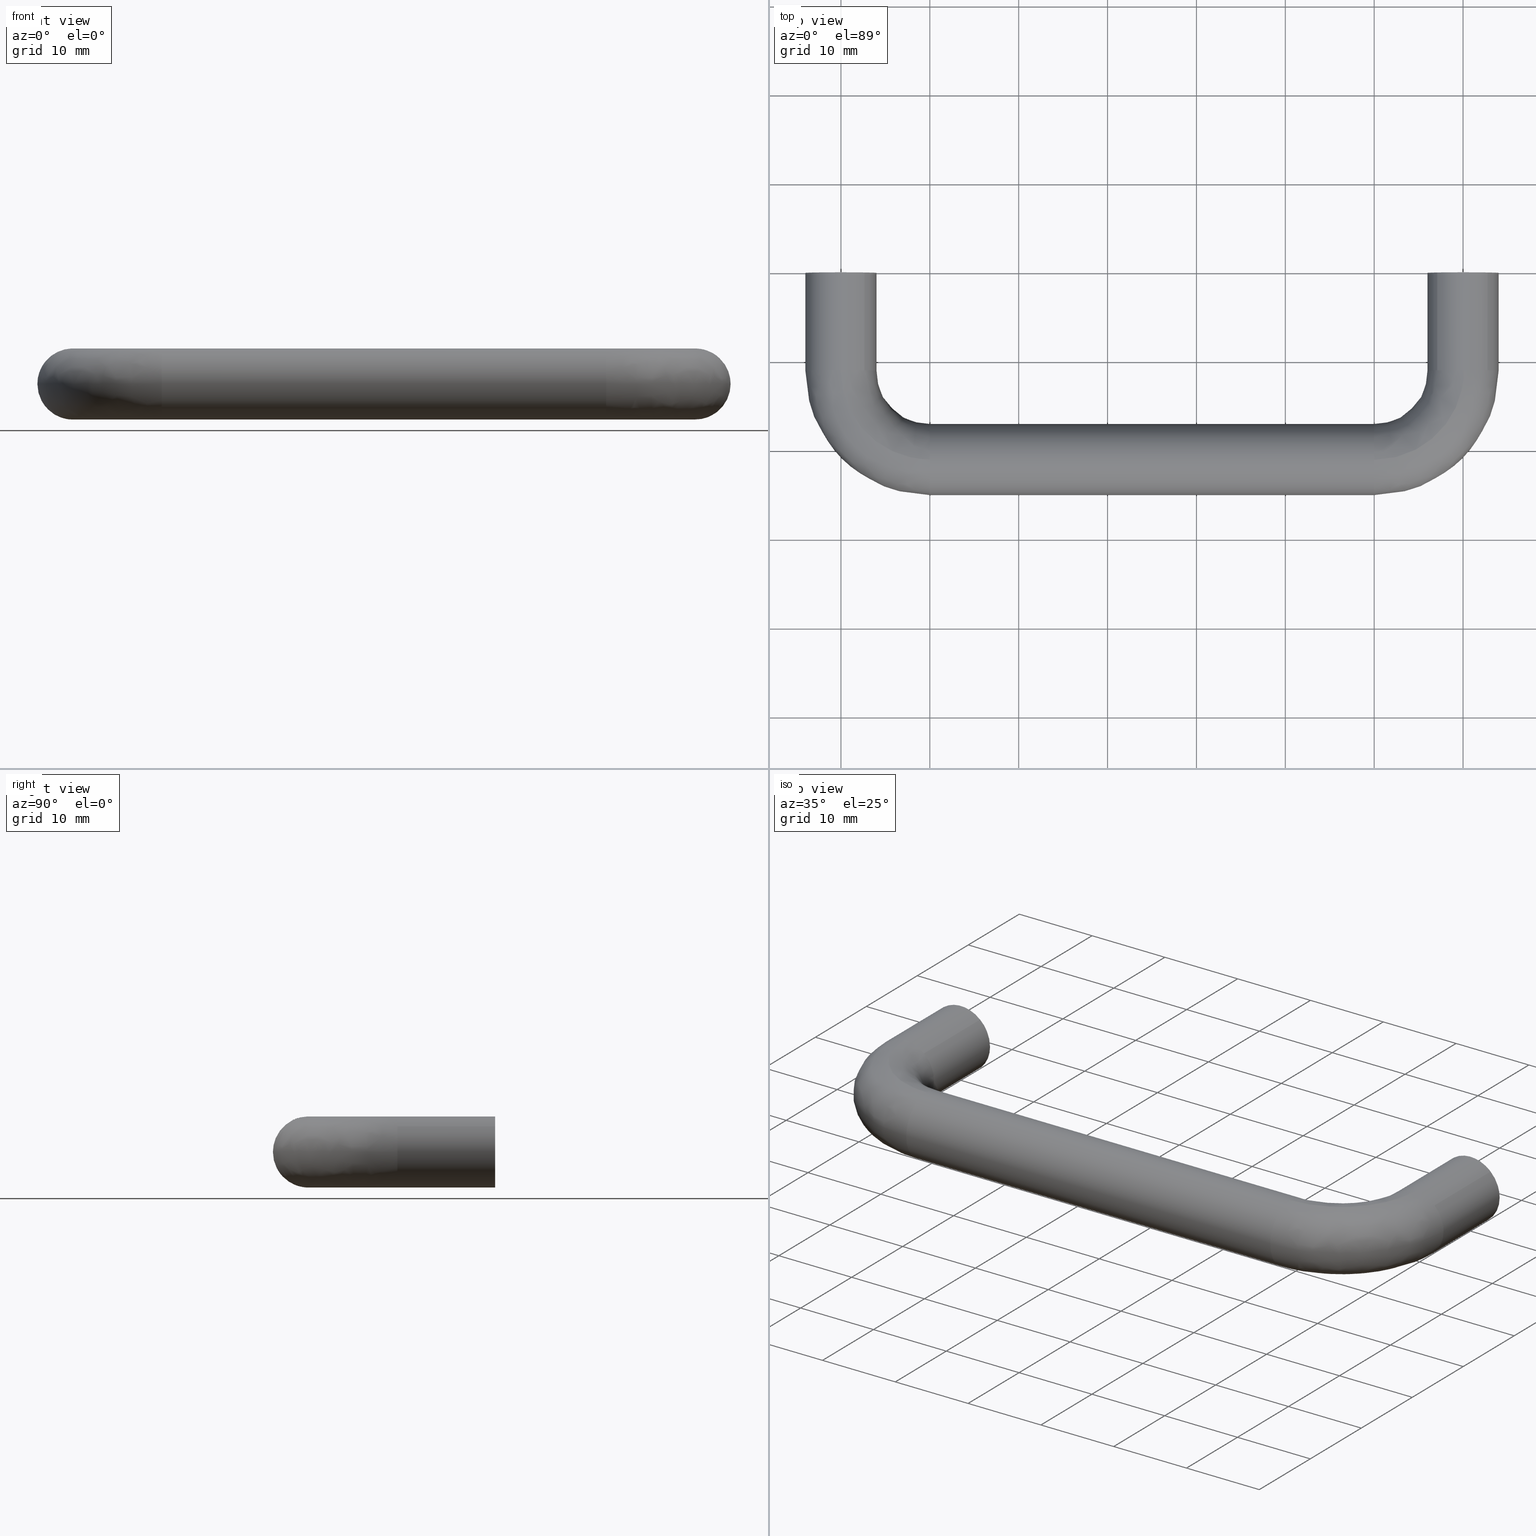
[diagram: canonical four-view strip — front | top / right | iso, engineering-drawing reading convention]
A machine part, canonical four-view strip (front | top / right | iso — engineering-drawing reading convention). The complete STEP part file that produces these views, byte-faithful:
ISO-10303-21;
HEADER;
/****************************************************************
 * Generated by software with PDE/Lib inside                    *
 * PDElib Version 4.4.1-0003, patched  Thursday August 19 11:58 *
 * International Technegroup Inc. (www.iti-oh.com)              *
 ****************************************************************/
FILE_DESCRIPTION((''),'2;1');
FILE_NAME('','2005-10-07T11:54:41',(''),(''),'','CADfix','');
FILE_SCHEMA(('AUTOMOTIVE_DESIGN'));
ENDSEC;
DATA;
#5=APPLICATION_CONTEXT('automotive design');
#6=APPLICATION_PROTOCOL_DEFINITION('Draft International Standard','automotive_design',1998,#5);
#7=PRODUCT_CONTEXT('None',#5,'mechanical');
#8=PRODUCT('pull','','None',(#7));
#9=PRODUCT_RELATED_PRODUCT_CATEGORY('part','description',(#8));
#10=PRODUCT_DEFINITION_FORMATION('None','None',#8);
#11=PRODUCT_DEFINITION_CONTEXT('part definition',#5,'design');
#12=PRODUCT_DEFINITION('None','None',#10,#11);
#18=(NAMED_UNIT(*)PLANE_ANGLE_UNIT()SI_UNIT($,.RADIAN.));
#19=DIMENSIONAL_EXPONENTS(0.0,0.0,0.0,0.0,0.0,0.0,0.0);
#20=PLANE_ANGLE_MEASURE_WITH_UNIT(PLANE_ANGLE_MEASURE(0.017453292500000),#18);
#24=(CONVERSION_BASED_UNIT('DEGREE',#20)NAMED_UNIT(#19)PLANE_ANGLE_UNIT());
#28=(NAMED_UNIT(*)SI_UNIT($,.STERADIAN.)SOLID_ANGLE_UNIT());
#32=(LENGTH_UNIT()NAMED_UNIT(*)SI_UNIT(.MILLI.,.METRE.));
#34=UNCERTAINTY_MEASURE_WITH_UNIT(LENGTH_MEASURE(0.001000000000000),#32,'DISTANCE_ACCURACY_VALUE','');
#36=(GEOMETRIC_REPRESENTATION_CONTEXT(3)GLOBAL_UNCERTAINTY_ASSIGNED_CONTEXT((#34))GLOBAL_UNIT_ASSIGNED_CONTEXT((#24,#28,#32))REPRESENTATION_CONTEXT('None','None'));
#37=AXIS2_PLACEMENT_3D('',#38,#39,#40);
#38=CARTESIAN_POINT('',(0.0,0.0,0.0));
#39=DIRECTION('',(0.0,0.0,1.0));
#40=DIRECTION('',(1.0,0.0,0.0));
#41=ADVANCED_BREP_SHAPE_REPRESENTATION('',(#37,#1345),#36);
#42=PRODUCT_DEFINITION_SHAPE('','',#12);
#43=SHAPE_DEFINITION_REPRESENTATION(#42,#41);
#44=CARTESIAN_POINT('',(-2.492293334332819,-10.250000000000000,0.196147739319614));
#45=CARTESIAN_POINT('',(-2.296145595013206,-10.250000000000002,2.688441073652433));
#46=CARTESIAN_POINT('',(0.196147739319614,-10.250000000000000,2.492293334332819));
#47=CARTESIAN_POINT('',(2.688441073652433,-10.250000000000002,2.296145595013206));
#48=CARTESIAN_POINT('',(2.492293334332819,-10.250000000000000,-0.196147739319614));
#49=CARTESIAN_POINT('',(-2.492293334332819,0.256250000000001,0.196147739319614));
#50=CARTESIAN_POINT('',(-2.296145595013206,0.256250000000001,2.688441073652433));
#51=CARTESIAN_POINT('',(0.196147739319614,0.256250000000001,2.492293334332819));
#52=CARTESIAN_POINT('',(2.688441073652433,0.256250000000001,2.296145595013206));
#53=CARTESIAN_POINT('',(2.492293334332819,0.256250000000001,-0.196147739319614));
#61=(BOUNDED_SURFACE()B_SPLINE_SURFACE(2,1,((#44,#49),(#45,#50),(#46,#51),(#47,#52),(#48,#53)),.UNSPECIFIED.,.F.,.F.,.U.)B_SPLINE_SURFACE_WITH_KNOTS((3,2,3),(2,2),(0.0,4.142135623730949,8.284271247461899),(0.0,10.506250000000000),.UNSPECIFIED.)GEOMETRIC_REPRESENTATION_ITEM()RATIONAL_B_SPLINE_SURFACE(((1.0,1.0),(0.707106781186548,0.707106781186548),(1.0,1.0),(0.707106781186548,0.707106781186548),(1.0,1.0)))REPRESENTATION_ITEM('')SURFACE());
#62=CARTESIAN_POINT('',(0.0,-10.0,2.500000000000000));
#63=VERTEX_POINT('',#62);
#64=CARTESIAN_POINT('',(-2.492293334330208,-10.0,0.196147739352795));
#65=VERTEX_POINT('',#64);
#66=CARTESIAN_POINT('',(0.0,-10.0,2.500000000000000));
#67=CARTESIAN_POINT('',(-2.310976229083793,-10.0,2.500000000000000));
#68=CARTESIAN_POINT('',(-2.492293334330208,-10.0,0.196147739352795));
#76=(BOUNDED_CURVE()B_SPLINE_CURVE(2,(#66,#67,#68),.UNSPECIFIED.,.F.,.U.)B_SPLINE_CURVE_WITH_KNOTS((3,3),(0.0,0.236331300628202),.UNSPECIFIED.)CURVE()GEOMETRIC_REPRESENTATION_ITEM()RATIONAL_B_SPLINE_CURVE((1.0,0.723120658610544,0.969723356162290))REPRESENTATION_ITEM(''));
#77=EDGE_CURVE('',#63,#65,#76,.T.);
#78=ORIENTED_EDGE('',*,*,#77,.T.);
#79=CARTESIAN_POINT('',(-2.492293334330208,-2.775558E-017,0.196147739352795));
#80=VERTEX_POINT('',#79);
#81=CARTESIAN_POINT('',(-2.492293334330208,-10.0,0.196147739352795));
#82=CARTESIAN_POINT('',(-2.492293334330208,-2.775558E-017,0.196147739352795));
#83=QUASI_UNIFORM_CURVE('',1,(#81,#82),.UNSPECIFIED.,.F.,.U.);
#84=EDGE_CURVE('',#65,#80,#83,.T.);
#85=ORIENTED_EDGE('',*,*,#84,.T.);
#86=CARTESIAN_POINT('',(0.0,0.0,2.500000000000000));
#87=VERTEX_POINT('',#86);
#88=CARTESIAN_POINT('',(0.0,0.0,2.500000000000000));
#89=CARTESIAN_POINT('',(-2.310976229083793,0.0,2.500000000000000));
#90=CARTESIAN_POINT('',(-2.492293334330208,-2.775558E-017,0.196147739352795));
#98=(BOUNDED_CURVE()B_SPLINE_CURVE(2,(#88,#89,#90),.UNSPECIFIED.,.F.,.U.)B_SPLINE_CURVE_WITH_KNOTS((3,3),(0.0,0.236331300628202),.UNSPECIFIED.)CURVE()GEOMETRIC_REPRESENTATION_ITEM()RATIONAL_B_SPLINE_CURVE((1.0,0.723120658610544,0.969723356162290))REPRESENTATION_ITEM(''));
#99=EDGE_CURVE('',#87,#80,#98,.T.);
#100=ORIENTED_EDGE('',*,*,#99,.F.);
#101=CARTESIAN_POINT('',(2.492293334330208,-2.775558E-017,-0.196147739352795));
#102=VERTEX_POINT('',#101);
#103=CARTESIAN_POINT('',(2.492293334330209,-2.775558E-017,-0.196147739352795));
#104=CARTESIAN_POINT('',(2.500000000000000,0.0,-0.098225267552510));
#105=CARTESIAN_POINT('',(2.500000000000000,0.0,0.0));
#106=CARTESIAN_POINT('',(2.500000000000000,0.0,2.500000000000000));
#107=CARTESIAN_POINT('',(0.0,0.0,2.500000000000000));
#115=(BOUNDED_CURVE()B_SPLINE_CURVE(2,(#103,#104,#105,#106,#107),.UNSPECIFIED.,.F.,.U.)B_SPLINE_CURVE_WITH_KNOTS((3,2,3),(0.736331300628202,0.750000000000000,1.0),.UNSPECIFIED.)CURVE()GEOMETRIC_REPRESENTATION_ITEM()RATIONAL_B_SPLINE_CURVE((0.969723356162290,0.983986122576003,1.0,0.707106781186548,1.0))REPRESENTATION_ITEM(''));
#116=EDGE_CURVE('',#102,#87,#115,.T.);
#117=ORIENTED_EDGE('',*,*,#116,.F.);
#118=CARTESIAN_POINT('',(2.492293334330208,-10.0,-0.196147739352795));
#119=VERTEX_POINT('',#118);
#120=CARTESIAN_POINT('',(2.492293334330208,-10.0,-0.196147739352795));
#121=CARTESIAN_POINT('',(2.492293334330208,-2.775558E-017,-0.196147739352795));
#122=QUASI_UNIFORM_CURVE('',1,(#120,#121),.UNSPECIFIED.,.F.,.U.);
#123=EDGE_CURVE('',#119,#102,#122,.T.);
#124=ORIENTED_EDGE('',*,*,#123,.F.);
#125=CARTESIAN_POINT('',(2.492293334330209,-9.999999999999998,-0.196147739352795));
#126=CARTESIAN_POINT('',(2.500000000000000,-9.999999999999998,-0.098225267552510));
#127=CARTESIAN_POINT('',(2.500000000000000,-10.0,0.0));
#128=CARTESIAN_POINT('',(2.500000000000000,-10.000000000000002,2.500000000000000));
#129=CARTESIAN_POINT('',(0.0,-10.0,2.500000000000000));
#137=(BOUNDED_CURVE()B_SPLINE_CURVE(2,(#125,#126,#127,#128,#129),.UNSPECIFIED.,.F.,.U.)B_SPLINE_CURVE_WITH_KNOTS((3,2,3),(0.736331300628202,0.750000000000000,1.0),.UNSPECIFIED.)CURVE()GEOMETRIC_REPRESENTATION_ITEM()RATIONAL_B_SPLINE_CURVE((0.969723356162290,0.983986122576003,1.0,0.707106781186548,1.0))REPRESENTATION_ITEM(''));
#138=EDGE_CURVE('',#119,#63,#137,.T.);
#139=ORIENTED_EDGE('',*,*,#138,.T.);
#140=EDGE_LOOP('',(#78,#85,#100,#117,#124,#139));
#141=FACE_OUTER_BOUND('',#140,.T.);
#142=ADVANCED_FACE('',(#141),#61,.F.);
#143=CARTESIAN_POINT('',(2.492293334332819,-10.250000000000000,-0.196147739319614));
#144=CARTESIAN_POINT('',(2.296145595013206,-10.250000000000002,-2.688441073652433));
#145=CARTESIAN_POINT('',(-0.196147739319614,-10.250000000000000,-2.492293334332819));
#146=CARTESIAN_POINT('',(-2.688441073652433,-10.250000000000002,-2.296145595013206));
#147=CARTESIAN_POINT('',(-2.492293334332819,-10.250000000000000,0.196147739319614));
#148=CARTESIAN_POINT('',(2.492293334332819,0.256250000000001,-0.196147739319614));
#149=CARTESIAN_POINT('',(2.296145595013206,0.256250000000001,-2.688441073652433));
#150=CARTESIAN_POINT('',(-0.196147739319614,0.256250000000001,-2.492293334332819));
#151=CARTESIAN_POINT('',(-2.688441073652433,0.256250000000001,-2.296145595013206));
#152=CARTESIAN_POINT('',(-2.492293334332819,0.256250000000001,0.196147739319614));
#160=(BOUNDED_SURFACE()B_SPLINE_SURFACE(2,1,((#143,#148),(#144,#149),(#145,#150),(#146,#151),(#147,#152)),.UNSPECIFIED.,.F.,.F.,.U.)B_SPLINE_SURFACE_WITH_KNOTS((3,2,3),(2,2),(0.0,4.142135623730949,8.284271247461899),(0.0,10.506250000000000),.UNSPECIFIED.)GEOMETRIC_REPRESENTATION_ITEM()RATIONAL_B_SPLINE_SURFACE(((1.0,1.0),(0.707106781186548,0.707106781186548),(1.0,1.0),(0.707106781186548,0.707106781186548),(1.0,1.0)))REPRESENTATION_ITEM('')SURFACE());
#161=CARTESIAN_POINT('',(0.0,-10.0,-2.500000000000000));
#162=VERTEX_POINT('',#161);
#163=CARTESIAN_POINT('',(-2.492293334330209,-9.999999999999998,0.196147739352795));
#164=CARTESIAN_POINT('',(-2.500000000000000,-10.0,0.098225267552510));
#165=CARTESIAN_POINT('',(-2.500000000000000,-10.0,0.0));
#166=CARTESIAN_POINT('',(-2.500000000000000,-10.000000000000002,-2.500000000000000));
#167=CARTESIAN_POINT('',(0.0,-10.0,-2.500000000000000));
#175=(BOUNDED_CURVE()B_SPLINE_CURVE(2,(#163,#164,#165,#166,#167),.UNSPECIFIED.,.F.,.U.)B_SPLINE_CURVE_WITH_KNOTS((3,2,3),(0.236331300628202,0.250000000000000,0.500000000000000),.UNSPECIFIED.)CURVE()GEOMETRIC_REPRESENTATION_ITEM()RATIONAL_B_SPLINE_CURVE((0.969723356162290,0.983986122576003,1.0,0.707106781186548,1.0))REPRESENTATION_ITEM(''));
#176=EDGE_CURVE('',#65,#162,#175,.T.);
#177=ORIENTED_EDGE('',*,*,#176,.T.);
#178=CARTESIAN_POINT('',(0.0,-10.0,-2.500000000000000));
#179=CARTESIAN_POINT('',(2.310976229083803,-10.0,-2.500000000000000));
#180=CARTESIAN_POINT('',(2.492293334330208,-10.0,-0.196147739352795));
#188=(BOUNDED_CURVE()B_SPLINE_CURVE(2,(#178,#179,#180),.UNSPECIFIED.,.F.,.U.)B_SPLINE_CURVE_WITH_KNOTS((3,3),(0.500000000000000,0.736331300628203),.UNSPECIFIED.)CURVE()GEOMETRIC_REPRESENTATION_ITEM()RATIONAL_B_SPLINE_CURVE((1.0,0.723120658610544,0.969723356162291))REPRESENTATION_ITEM(''));
#189=EDGE_CURVE('',#162,#119,#188,.T.);
#190=ORIENTED_EDGE('',*,*,#189,.T.);
#191=ORIENTED_EDGE('',*,*,#123,.T.);
#192=CARTESIAN_POINT('',(0.0,0.0,-2.500000000000000));
#193=VERTEX_POINT('',#192);
#194=CARTESIAN_POINT('',(0.0,0.0,-2.500000000000000));
#195=CARTESIAN_POINT('',(2.310976229083803,0.0,-2.500000000000000));
#196=CARTESIAN_POINT('',(2.492293334330208,-2.775558E-017,-0.196147739352795));
#204=(BOUNDED_CURVE()B_SPLINE_CURVE(2,(#194,#195,#196),.UNSPECIFIED.,.F.,.U.)B_SPLINE_CURVE_WITH_KNOTS((3,3),(0.500000000000000,0.736331300628203),.UNSPECIFIED.)CURVE()GEOMETRIC_REPRESENTATION_ITEM()RATIONAL_B_SPLINE_CURVE((1.0,0.723120658610544,0.969723356162291))REPRESENTATION_ITEM(''));
#205=EDGE_CURVE('',#193,#102,#204,.T.);
#206=ORIENTED_EDGE('',*,*,#205,.F.);
#207=CARTESIAN_POINT('',(-2.492293334330209,-2.775558E-017,0.196147739352795));
#208=CARTESIAN_POINT('',(-2.500000000000000,0.0,0.098225267552510));
#209=CARTESIAN_POINT('',(-2.500000000000000,0.0,0.0));
#210=CARTESIAN_POINT('',(-2.500000000000000,0.0,-2.500000000000000));
#211=CARTESIAN_POINT('',(0.0,0.0,-2.500000000000000));
#219=(BOUNDED_CURVE()B_SPLINE_CURVE(2,(#207,#208,#209,#210,#211),.UNSPECIFIED.,.F.,.U.)B_SPLINE_CURVE_WITH_KNOTS((3,2,3),(0.236331300628202,0.250000000000000,0.500000000000000),.UNSPECIFIED.)CURVE()GEOMETRIC_REPRESENTATION_ITEM()RATIONAL_B_SPLINE_CURVE((0.969723356162290,0.983986122576003,1.0,0.707106781186548,1.0))REPRESENTATION_ITEM(''));
#220=EDGE_CURVE('',#80,#193,#219,.T.);
#221=ORIENTED_EDGE('',*,*,#220,.F.);
#222=ORIENTED_EDGE('',*,*,#84,.F.);
#223=EDGE_LOOP('',(#177,#190,#191,#206,#221,#222));
#224=FACE_OUTER_BOUND('',#223,.T.);
#225=ADVANCED_FACE('',(#224),#160,.F.);
#226=CARTESIAN_POINT('',(67.507706665667186,-10.250000000000000,0.196147739319614));
#227=CARTESIAN_POINT('',(67.703854404986799,-10.250000000000002,2.688441073652433));
#228=CARTESIAN_POINT('',(70.196147739319613,-10.250000000000000,2.492293334332819));
#229=CARTESIAN_POINT('',(72.688441073652427,-10.250000000000002,2.296145595013206));
#230=CARTESIAN_POINT('',(72.492293334332814,-10.250000000000000,-0.196147739319614));
#231=CARTESIAN_POINT('',(67.507706665667186,0.256250000000001,0.196147739319614));
#232=CARTESIAN_POINT('',(67.703854404986799,0.256250000000001,2.688441073652433));
#233=CARTESIAN_POINT('',(70.196147739319613,0.256250000000001,2.492293334332819));
#234=CARTESIAN_POINT('',(72.688441073652427,0.256250000000001,2.296145595013206));
#235=CARTESIAN_POINT('',(72.492293334332814,0.256250000000001,-0.196147739319614));
#243=(BOUNDED_SURFACE()B_SPLINE_SURFACE(2,1,((#226,#231),(#227,#232),(#228,#233),(#229,#234),(#230,#235)),.UNSPECIFIED.,.F.,.F.,.U.)B_SPLINE_SURFACE_WITH_KNOTS((3,2,3),(2,2),(0.0,4.142135623730946,8.284271247461891),(0.0,10.506250000000000),.UNSPECIFIED.)GEOMETRIC_REPRESENTATION_ITEM()RATIONAL_B_SPLINE_SURFACE(((1.0,1.0),(0.707106781186548,0.707106781186548),(1.0,1.0),(0.707106781186548,0.707106781186548),(1.0,1.0)))REPRESENTATION_ITEM('')SURFACE());
#244=CARTESIAN_POINT('',(70.0,-10.0,2.500000000000000));
#245=VERTEX_POINT('',#244);
#246=CARTESIAN_POINT('',(67.507706665669787,-10.0,0.196147739352795));
#247=VERTEX_POINT('',#246);
#248=CARTESIAN_POINT('',(70.0,-10.0,2.500000000000000));
#249=CARTESIAN_POINT('',(67.689023770916208,-10.0,2.500000000000000));
#250=CARTESIAN_POINT('',(67.507706665669787,-10.0,0.196147739352795));
#258=(BOUNDED_CURVE()B_SPLINE_CURVE(2,(#248,#249,#250),.UNSPECIFIED.,.F.,.U.)B_SPLINE_CURVE_WITH_KNOTS((3,3),(0.0,0.236331300628202),.UNSPECIFIED.)CURVE()GEOMETRIC_REPRESENTATION_ITEM()RATIONAL_B_SPLINE_CURVE((1.0,0.723120658610545,0.969723356162289))REPRESENTATION_ITEM(''));
#259=EDGE_CURVE('',#245,#247,#258,.T.);
#260=ORIENTED_EDGE('',*,*,#259,.T.);
#261=CARTESIAN_POINT('',(67.507706665669787,-2.775558E-017,0.196147739352795));
#262=VERTEX_POINT('',#261);
#263=CARTESIAN_POINT('',(67.507706665669787,-10.0,0.196147739352795));
#264=CARTESIAN_POINT('',(67.507706665669787,-2.775558E-017,0.196147739352795));
#265=QUASI_UNIFORM_CURVE('',1,(#263,#264),.UNSPECIFIED.,.F.,.U.);
#266=EDGE_CURVE('',#247,#262,#265,.T.);
#267=ORIENTED_EDGE('',*,*,#266,.T.);
#268=CARTESIAN_POINT('',(70.0,0.0,2.500000000000000));
#269=VERTEX_POINT('',#268);
#270=CARTESIAN_POINT('',(70.0,0.0,2.500000000000000));
#271=CARTESIAN_POINT('',(67.689023770916208,0.0,2.500000000000000));
#272=CARTESIAN_POINT('',(67.507706665669787,-2.775558E-017,0.196147739352795));
#280=(BOUNDED_CURVE()B_SPLINE_CURVE(2,(#270,#271,#272),.UNSPECIFIED.,.F.,.U.)B_SPLINE_CURVE_WITH_KNOTS((3,3),(0.0,0.236331300628202),.UNSPECIFIED.)CURVE()GEOMETRIC_REPRESENTATION_ITEM()RATIONAL_B_SPLINE_CURVE((1.0,0.723120658610544,0.969723356162290))REPRESENTATION_ITEM(''));
#281=EDGE_CURVE('',#269,#262,#280,.T.);
#282=ORIENTED_EDGE('',*,*,#281,.F.);
#283=CARTESIAN_POINT('',(72.492293334330213,-2.775558E-017,-0.196147739352796));
#284=VERTEX_POINT('',#283);
#285=CARTESIAN_POINT('',(72.492293334330213,-2.775558E-017,-0.196147739352796));
#286=CARTESIAN_POINT('',(72.500000000000014,0.0,-0.098225267552511));
#287=CARTESIAN_POINT('',(72.500000000000014,0.0,0.0));
#288=CARTESIAN_POINT('',(72.500000000000014,0.0,2.500000000000000));
#289=CARTESIAN_POINT('',(70.0,0.0,2.500000000000000));
#297=(BOUNDED_CURVE()B_SPLINE_CURVE(2,(#285,#286,#287,#288,#289),.UNSPECIFIED.,.F.,.U.)B_SPLINE_CURVE_WITH_KNOTS((3,2,3),(0.736331300628202,0.750000000000000,1.0),.UNSPECIFIED.)CURVE()GEOMETRIC_REPRESENTATION_ITEM()RATIONAL_B_SPLINE_CURVE((0.969723356162289,0.983986122576003,1.0,0.707106781186548,1.0))REPRESENTATION_ITEM(''));
#298=EDGE_CURVE('',#284,#269,#297,.T.);
#299=ORIENTED_EDGE('',*,*,#298,.F.);
#300=CARTESIAN_POINT('',(72.492293334330213,-9.999999999999998,-0.196147739352795));
#301=VERTEX_POINT('',#300);
#302=CARTESIAN_POINT('',(72.492293334330213,-9.999999999999998,-0.196147739352795));
#303=CARTESIAN_POINT('',(72.492293334330213,-2.775558E-017,-0.196147739352796));
#304=QUASI_UNIFORM_CURVE('',1,(#302,#303),.UNSPECIFIED.,.F.,.U.);
#305=EDGE_CURVE('',#301,#284,#304,.T.);
#306=ORIENTED_EDGE('',*,*,#305,.F.);
#307=CARTESIAN_POINT('',(72.492293334330213,-9.999999999999998,-0.196147739352795));
#308=CARTESIAN_POINT('',(72.500000000000000,-9.999999999999998,-0.098225267552510));
#309=CARTESIAN_POINT('',(72.500000000000014,-10.0,0.0));
#310=CARTESIAN_POINT('',(72.500000000000014,-10.000000000000002,2.500000000000000));
#311=CARTESIAN_POINT('',(70.0,-10.0,2.500000000000000));
#319=(BOUNDED_CURVE()B_SPLINE_CURVE(2,(#307,#308,#309,#310,#311),.UNSPECIFIED.,.F.,.U.)B_SPLINE_CURVE_WITH_KNOTS((3,2,3),(0.736331300628202,0.750000000000000,1.0),.UNSPECIFIED.)CURVE()GEOMETRIC_REPRESENTATION_ITEM()RATIONAL_B_SPLINE_CURVE((0.969723356162290,0.983986122576003,1.0,0.707106781186548,1.0))REPRESENTATION_ITEM(''));
#320=EDGE_CURVE('',#301,#245,#319,.T.);
#321=ORIENTED_EDGE('',*,*,#320,.T.);
#322=EDGE_LOOP('',(#260,#267,#282,#299,#306,#321));
#323=FACE_OUTER_BOUND('',#322,.T.);
#324=ADVANCED_FACE('',(#323),#243,.F.);
#325=CARTESIAN_POINT('',(72.492293334332814,-10.250000000000000,-0.196147739319614));
#326=CARTESIAN_POINT('',(72.296145595013215,-10.250000000000002,-2.688441073652433));
#327=CARTESIAN_POINT('',(69.803852260680387,-10.250000000000000,-2.492293334332819));
#328=CARTESIAN_POINT('',(67.311558926347573,-10.250000000000002,-2.296145595013206));
#329=CARTESIAN_POINT('',(67.507706665667186,-10.250000000000000,0.196147739319614));
#330=CARTESIAN_POINT('',(72.492293334332814,0.256250000000001,-0.196147739319614));
#331=CARTESIAN_POINT('',(72.296145595013215,0.256250000000001,-2.688441073652433));
#332=CARTESIAN_POINT('',(69.803852260680387,0.256250000000001,-2.492293334332819));
#333=CARTESIAN_POINT('',(67.311558926347573,0.256250000000001,-2.296145595013206));
#334=CARTESIAN_POINT('',(67.507706665667186,0.256250000000001,0.196147739319614));
#342=(BOUNDED_SURFACE()B_SPLINE_SURFACE(2,1,((#325,#330),(#326,#331),(#327,#332),(#328,#333),(#329,#334)),.UNSPECIFIED.,.F.,.F.,.U.)B_SPLINE_SURFACE_WITH_KNOTS((3,2,3),(2,2),(0.0,4.142135623730946,8.284271247461891),(0.0,10.506250000000000),.UNSPECIFIED.)GEOMETRIC_REPRESENTATION_ITEM()RATIONAL_B_SPLINE_SURFACE(((1.0,1.0),(0.707106781186548,0.707106781186548),(1.0,1.0),(0.707106781186548,0.707106781186548),(1.0,1.0)))REPRESENTATION_ITEM('')SURFACE());
#343=CARTESIAN_POINT('',(70.0,-10.0,-2.500000000000000));
#344=VERTEX_POINT('',#343);
#345=CARTESIAN_POINT('',(67.507706665669787,-10.0,0.196147739352795));
#346=CARTESIAN_POINT('',(67.500000000000000,-9.999999999999998,0.098225267552510));
#347=CARTESIAN_POINT('',(67.500000000000000,-10.0,0.0));
#348=CARTESIAN_POINT('',(67.500000000000000,-10.000000000000002,-2.500000000000000));
#349=CARTESIAN_POINT('',(70.0,-10.0,-2.500000000000000));
#357=(BOUNDED_CURVE()B_SPLINE_CURVE(2,(#345,#346,#347,#348,#349),.UNSPECIFIED.,.F.,.U.)B_SPLINE_CURVE_WITH_KNOTS((3,2,3),(0.236331300628202,0.250000000000000,0.500000000000000),.UNSPECIFIED.)CURVE()GEOMETRIC_REPRESENTATION_ITEM()RATIONAL_B_SPLINE_CURVE((0.969723356162289,0.983986122576003,1.0,0.707106781186548,1.0))REPRESENTATION_ITEM(''));
#358=EDGE_CURVE('',#247,#344,#357,.T.);
#359=ORIENTED_EDGE('',*,*,#358,.T.);
#360=CARTESIAN_POINT('',(70.0,-10.0,-2.500000000000000));
#361=CARTESIAN_POINT('',(72.310976229083820,-10.0,-2.500000000000000));
#362=CARTESIAN_POINT('',(72.492293334330213,-9.999999999999998,-0.196147739352795));
#370=(BOUNDED_CURVE()B_SPLINE_CURVE(2,(#360,#361,#362),.UNSPECIFIED.,.F.,.U.)B_SPLINE_CURVE_WITH_KNOTS((3,3),(0.500000000000000,0.736331300628203),.UNSPECIFIED.)CURVE()GEOMETRIC_REPRESENTATION_ITEM()RATIONAL_B_SPLINE_CURVE((1.0,0.723120658610544,0.969723356162291))REPRESENTATION_ITEM(''));
#371=EDGE_CURVE('',#344,#301,#370,.T.);
#372=ORIENTED_EDGE('',*,*,#371,.T.);
#373=ORIENTED_EDGE('',*,*,#305,.T.);
#374=CARTESIAN_POINT('',(70.0,0.0,-2.500000000000000));
#375=VERTEX_POINT('',#374);
#376=CARTESIAN_POINT('',(70.0,0.0,-2.500000000000000));
#377=CARTESIAN_POINT('',(72.310976229083820,0.0,-2.500000000000000));
#378=CARTESIAN_POINT('',(72.492293334330213,-2.775558E-017,-0.196147739352796));
#386=(BOUNDED_CURVE()B_SPLINE_CURVE(2,(#376,#377,#378),.UNSPECIFIED.,.F.,.U.)B_SPLINE_CURVE_WITH_KNOTS((3,3),(0.500000000000000,0.736331300628203),.UNSPECIFIED.)CURVE()GEOMETRIC_REPRESENTATION_ITEM()RATIONAL_B_SPLINE_CURVE((1.0,0.723120658610544,0.969723356162291))REPRESENTATION_ITEM(''));
#387=EDGE_CURVE('',#375,#284,#386,.T.);
#388=ORIENTED_EDGE('',*,*,#387,.F.);
#389=CARTESIAN_POINT('',(67.507706665669787,-2.775558E-017,0.196147739352795));
#390=CARTESIAN_POINT('',(67.499999999999986,0.0,0.098225267552510));
#391=CARTESIAN_POINT('',(67.500000000000000,0.0,0.0));
#392=CARTESIAN_POINT('',(67.500000000000000,0.0,-2.500000000000000));
#393=CARTESIAN_POINT('',(70.0,0.0,-2.500000000000000));
#401=(BOUNDED_CURVE()B_SPLINE_CURVE(2,(#389,#390,#391,#392,#393),.UNSPECIFIED.,.F.,.U.)B_SPLINE_CURVE_WITH_KNOTS((3,2,3),(0.236331300628202,0.250000000000000,0.500000000000000),.UNSPECIFIED.)CURVE()GEOMETRIC_REPRESENTATION_ITEM()RATIONAL_B_SPLINE_CURVE((0.969723356162290,0.983986122576003,1.0,0.707106781186548,1.0))REPRESENTATION_ITEM(''));
#402=EDGE_CURVE('',#262,#375,#401,.T.);
#403=ORIENTED_EDGE('',*,*,#402,.F.);
#404=ORIENTED_EDGE('',*,*,#266,.F.);
#405=EDGE_LOOP('',(#359,#372,#373,#388,#403,#404));
#406=FACE_OUTER_BOUND('',#405,.T.);
#407=ADVANCED_FACE('',(#406),#342,.F.);
#408=CARTESIAN_POINT('',(72.753418302775017,-11.275000000639951,2.901497484049150));
#409=CARTESIAN_POINT('',(75.654915786824176,-11.275000000639949,0.148079181274134));
#410=CARTESIAN_POINT('',(72.901497484049145,-11.275000000639951,-2.753418302775015));
#411=CARTESIAN_POINT('',(70.148079181274127,-11.275000000639949,-5.654915786824165));
#412=CARTESIAN_POINT('',(67.246581697224983,-11.275000000639951,-2.901497484049150));
#413=CARTESIAN_POINT('',(64.345084213175838,-11.275000000639949,-0.148079181274134));
#414=CARTESIAN_POINT('',(67.098502515950855,-11.275000000639951,2.753418302775015));
#415=CARTESIAN_POINT('',(72.753418302775017,0.281875000016008,2.901497484049150));
#416=CARTESIAN_POINT('',(75.654915786824176,0.281875000016008,0.148079181274134));
#417=CARTESIAN_POINT('',(72.901497484049145,0.281875000016008,-2.753418302775015));
#418=CARTESIAN_POINT('',(70.148079181274127,0.281875000016008,-5.654915786824165));
#419=CARTESIAN_POINT('',(67.246581697224983,0.281875000016008,-2.901497484049150));
#420=CARTESIAN_POINT('',(64.345084213175838,0.281875000016008,-0.148079181274134));
#421=CARTESIAN_POINT('',(67.098502515950855,0.281875000016008,2.753418302775015));
#429=(BOUNDED_SURFACE()B_SPLINE_SURFACE(2,1,((#408,#415),(#409,#416),(#410,#417),(#411,#418),(#412,#419),(#413,#420),(#414,#421)),.UNSPECIFIED.,.F.,.F.,.U.)B_SPLINE_SURFACE_WITH_KNOTS((3,2,2,3),(2,2),(0.0,6.627416997969519,13.254833995939039,19.882250993908560),(0.0,11.556875000655960),.UNSPECIFIED.)GEOMETRIC_REPRESENTATION_ITEM()RATIONAL_B_SPLINE_SURFACE(((1.0,1.0),(0.707106781186548,0.707106781186548),(1.0,1.0),(0.707106781186548,0.707106781186548),(1.0,1.0),(0.707106781186548,0.707106781186548),(1.0,1.0)))REPRESENTATION_ITEM('')SURFACE());
#430=CARTESIAN_POINT('',(72.753417929688240,3.245321E-014,2.901497838095193));
#431=VERTEX_POINT('',#430);
#432=CARTESIAN_POINT('',(74.000000000000014,8.673617E-015,0.0));
#433=VERTEX_POINT('',#432);
#434=CARTESIAN_POINT('',(72.753417929688240,3.245321E-014,2.901497838095193));
#435=CARTESIAN_POINT('',(74.000000000000014,8.673617E-015,1.718536233143190));
#436=CARTESIAN_POINT('',(74.000000000000014,8.673617E-015,0.0));
#444=(BOUNDED_CURVE()B_SPLINE_CURVE(2,(#434,#435,#436),.UNSPECIFIED.,.F.,.U.)B_SPLINE_CURVE_WITH_KNOTS((3,3),(0.871049487848710,1.0),.UNSPECIFIED.)CURVE()GEOMETRIC_REPRESENTATION_ITEM()RATIONAL_B_SPLINE_CURVE((0.853699664243447,0.848925077713462,1.0))REPRESENTATION_ITEM(''));
#445=EDGE_CURVE('',#431,#433,#444,.T.);
#446=ORIENTED_EDGE('',*,*,#445,.F.);
#447=CARTESIAN_POINT('',(72.753417502998204,-11.000000000199600,2.901498242596409));
#448=VERTEX_POINT('',#447);
#449=CARTESIAN_POINT('',(72.753417502998204,-11.000000000199600,2.901498242596409));
#450=CARTESIAN_POINT('',(72.753417929688240,3.245321E-014,2.901497838095193));
#451=QUASI_UNIFORM_CURVE('',1,(#449,#450),.UNSPECIFIED.,.F.,.U.);
#452=EDGE_CURVE('',#448,#431,#451,.T.);
#453=ORIENTED_EDGE('',*,*,#452,.F.);
#454=CARTESIAN_POINT('',(74.000000000000014,-11.0,0.0));
#455=VERTEX_POINT('',#454);
#456=CARTESIAN_POINT('',(72.753417502998204,-11.000000000199599,2.901498242596409));
#457=CARTESIAN_POINT('',(74.000000000000014,-11.0,1.718536276351393));
#458=CARTESIAN_POINT('',(74.000000000000014,-11.0,0.0));
#466=(BOUNDED_CURVE()B_SPLINE_CURVE(2,(#456,#457,#458),.UNSPECIFIED.,.F.,.U.)B_SPLINE_CURVE_WITH_KNOTS((3,3),(0.871049485096384,1.0),.UNSPECIFIED.)CURVE()GEOMETRIC_REPRESENTATION_ITEM()RATIONAL_B_SPLINE_CURVE((0.853699664447265,0.848925074488911,1.0))REPRESENTATION_ITEM(''));
#467=EDGE_CURVE('',#448,#455,#466,.T.);
#468=ORIENTED_EDGE('',*,*,#467,.T.);
#469=CARTESIAN_POINT('',(69.899479617930368,-11.000000000273801,-3.998736757125752));
#470=VERTEX_POINT('',#469);
#471=CARTESIAN_POINT('',(74.000000000000014,-11.0,0.0));
#472=CARTESIAN_POINT('',(74.000000000000014,-11.0,-4.000000000000000));
#473=CARTESIAN_POINT('',(70.0,-11.0,-4.0));
#474=CARTESIAN_POINT('',(69.949731871210062,-11.0,-4.000000000000001));
#475=CARTESIAN_POINT('',(69.899479617930368,-11.000000000273797,-3.998736757125752));
#483=(BOUNDED_CURVE()B_SPLINE_CURVE(2,(#471,#472,#473,#474,#475),.UNSPECIFIED.,.F.,.U.)B_SPLINE_CURVE_WITH_KNOTS((3,2,3),(0.0,0.250000000000000,0.254420108256121),.UNSPECIFIED.)CURVE()GEOMETRIC_REPRESENTATION_ITEM()RATIONAL_B_SPLINE_CURVE((1.0,0.707106781186548,1.0,0.994821521061443,0.989826157622969))REPRESENTATION_ITEM(''));
#484=EDGE_CURVE('',#455,#470,#483,.T.);
#485=ORIENTED_EDGE('',*,*,#484,.T.);
#486=CARTESIAN_POINT('',(66.0,-11.0,0.0));
#487=VERTEX_POINT('',#486);
#488=CARTESIAN_POINT('',(69.899479617930368,-11.000000000273797,-3.998736757125752));
#489=CARTESIAN_POINT('',(65.999999999999986,-11.0,-3.900711504144390));
#490=CARTESIAN_POINT('',(66.0,-11.0,0.0));
#498=(BOUNDED_CURVE()B_SPLINE_CURVE(2,(#488,#489,#490),.UNSPECIFIED.,.F.,.U.)B_SPLINE_CURVE_WITH_KNOTS((3,3),(0.254420108256121,0.500000000000000),.UNSPECIFIED.)CURVE()GEOMETRIC_REPRESENTATION_ITEM()RATIONAL_B_SPLINE_CURVE((0.989826157622969,0.712285260125105,1.0))REPRESENTATION_ITEM(''));
#499=EDGE_CURVE('',#470,#487,#498,.T.);
#500=ORIENTED_EDGE('',*,*,#499,.T.);
#501=CARTESIAN_POINT('',(67.098502167182076,-11.000000000000011,2.753417935249319));
#502=VERTEX_POINT('',#501);
#503=CARTESIAN_POINT('',(66.0,-11.0,0.0));
#504=CARTESIAN_POINT('',(66.0,-11.0,1.595837596578552));
#505=CARTESIAN_POINT('',(67.098502167182076,-11.000000000000009,2.753417935249319));
#513=(BOUNDED_CURVE()B_SPLINE_CURVE(2,(#503,#504,#505),.UNSPECIFIED.,.F.,.U.)B_SPLINE_CURVE_WITH_KNOTS((3,3),(0.500000000000000,0.621049488427203),.UNSPECIFIED.)CURVE()GEOMETRIC_REPRESENTATION_ITEM()RATIONAL_B_SPLINE_CURVE((1.0,0.858181702795339,0.853699664200608))REPRESENTATION_ITEM(''));
#514=EDGE_CURVE('',#487,#502,#513,.T.);
#515=ORIENTED_EDGE('',*,*,#514,.T.);
#516=CARTESIAN_POINT('',(67.098502171384510,8.805456E-015,2.753417939677762));
#517=VERTEX_POINT('',#516);
#518=CARTESIAN_POINT('',(67.098502167182076,-11.000000000000011,2.753417935249319));
#519=CARTESIAN_POINT('',(67.098502171384510,8.805456E-015,2.753417939677762));
#520=QUASI_UNIFORM_CURVE('',1,(#518,#519),.UNSPECIFIED.,.F.,.U.);
#521=EDGE_CURVE('',#502,#517,#520,.T.);
#522=ORIENTED_EDGE('',*,*,#521,.T.);
#523=CARTESIAN_POINT('',(66.0,8.673617E-015,0.0));
#524=VERTEX_POINT('',#523);
#525=CARTESIAN_POINT('',(66.0,8.673617E-015,0.0));
#526=CARTESIAN_POINT('',(66.0,8.673617E-015,1.595837603655297));
#527=CARTESIAN_POINT('',(67.098502171384510,8.805456E-015,2.753417939677763));
#535=(BOUNDED_CURVE()B_SPLINE_CURVE(2,(#525,#526,#527),.UNSPECIFIED.,.F.,.U.)B_SPLINE_CURVE_WITH_KNOTS((3,3),(0.500000000000000,0.621049488887870),.UNSPECIFIED.)CURVE()GEOMETRIC_REPRESENTATION_ITEM()RATIONAL_B_SPLINE_CURVE((1.0,0.858181702255634,0.853699664166494))REPRESENTATION_ITEM(''));
#536=EDGE_CURVE('',#524,#517,#535,.T.);
#537=ORIENTED_EDGE('',*,*,#536,.F.);
#538=CARTESIAN_POINT('',(74.000000000000014,8.673617E-015,0.0));
#539=CARTESIAN_POINT('',(74.000000000000014,8.673617E-015,-4.000000000000000));
#540=CARTESIAN_POINT('',(70.0,8.673617E-015,-4.0));
#541=CARTESIAN_POINT('',(66.0,8.673617E-015,-4.000000000000000));
#542=CARTESIAN_POINT('',(66.0,8.673617E-015,0.0));
#550=(BOUNDED_CURVE()B_SPLINE_CURVE(2,(#538,#539,#540,#541,#542),.UNSPECIFIED.,.F.,.U.)B_SPLINE_CURVE_WITH_KNOTS((3,2,3),(0.0,0.250000000000000,0.500000000000000),.UNSPECIFIED.)CURVE()GEOMETRIC_REPRESENTATION_ITEM()RATIONAL_B_SPLINE_CURVE((1.0,0.707106781186548,1.0,0.707106781186548,1.0))REPRESENTATION_ITEM(''));
#551=EDGE_CURVE('',#433,#524,#550,.T.);
#552=ORIENTED_EDGE('',*,*,#551,.F.);
#553=EDGE_LOOP('',(#446,#453,#468,#485,#500,#515,#522,#537,#552));
#554=FACE_OUTER_BOUND('',#553,.T.);
#555=ADVANCED_FACE('',(#554),#429,.T.);
#556=CARTESIAN_POINT('',(67.098502515950855,-11.275000000639951,2.753418302775015));
#557=CARTESIAN_POINT('',(69.851920818725887,-11.275000000639949,5.654915786824165));
#558=CARTESIAN_POINT('',(72.753418302775017,-11.275000000639951,2.901497484049150));
#559=CARTESIAN_POINT('',(67.098502515950855,0.281875000016008,2.753418302775015));
#560=CARTESIAN_POINT('',(69.851920818725887,0.281875000016008,5.654915786824165));
#561=CARTESIAN_POINT('',(72.753418302775017,0.281875000016008,2.901497484049150));
#569=(BOUNDED_SURFACE()B_SPLINE_SURFACE(2,1,((#556,#559),(#557,#560),(#558,#561)),.UNSPECIFIED.,.F.,.F.,.U.)B_SPLINE_SURFACE_WITH_KNOTS((3,3),(2,2),(0.0,6.627416997969515),(0.0,11.556875000655960),.UNSPECIFIED.)GEOMETRIC_REPRESENTATION_ITEM()RATIONAL_B_SPLINE_SURFACE(((1.0,1.0),(0.707106781186548,0.707106781186548),(1.0,1.0)))REPRESENTATION_ITEM('')SURFACE());
#570=CARTESIAN_POINT('',(67.098502171384524,8.805456E-015,2.753417939677761));
#571=CARTESIAN_POINT('',(68.281463783170381,8.673617E-015,4.0));
#572=CARTESIAN_POINT('',(70.0,8.673617E-015,4.0));
#573=CARTESIAN_POINT('',(71.595837587691776,8.673617E-015,4.000000000000001));
#574=CARTESIAN_POINT('',(72.753417929688240,3.245321E-014,2.901497838095193));
#582=(BOUNDED_CURVE()B_SPLINE_CURVE(2,(#570,#571,#572,#573,#574),.UNSPECIFIED.,.F.,.U.)B_SPLINE_CURVE_WITH_KNOTS((3,2,3),(0.621049488887871,0.750000000000000,0.871049487848710),.UNSPECIFIED.)CURVE()GEOMETRIC_REPRESENTATION_ITEM()RATIONAL_B_SPLINE_CURVE((0.853699664166494,0.848925078930915,1.0,0.858181703473085,0.853699664243447))REPRESENTATION_ITEM(''));
#583=EDGE_CURVE('',#517,#431,#582,.T.);
#584=ORIENTED_EDGE('',*,*,#583,.F.);
#585=ORIENTED_EDGE('',*,*,#521,.F.);
#586=CARTESIAN_POINT('',(70.100520384564703,-11.000000000624340,3.998736757063030));
#587=VERTEX_POINT('',#586);
#588=CARTESIAN_POINT('',(67.098502167182076,-11.000000000000011,2.753417935249319));
#589=CARTESIAN_POINT('',(68.281463775938448,-11.0,4.000000000000001));
#590=CARTESIAN_POINT('',(70.0,-11.0,4.0));
#591=CARTESIAN_POINT('',(70.050268131286202,-11.000000000000004,4.000000000000001));
#592=CARTESIAN_POINT('',(70.100520384564703,-11.000000000624341,3.998736757063030));
#600=(BOUNDED_CURVE()B_SPLINE_CURVE(2,(#588,#589,#590,#591,#592),.UNSPECIFIED.,.F.,.U.)B_SPLINE_CURVE_WITH_KNOTS((3,2,3),(0.621049488427202,0.750000000000000,0.754420108474482),.UNSPECIFIED.)CURVE()GEOMETRIC_REPRESENTATION_ITEM()RATIONAL_B_SPLINE_CURVE((0.853699664200608,0.848925078391208,1.0,0.994821520805617,0.989826157129410))REPRESENTATION_ITEM(''));
#601=EDGE_CURVE('',#502,#587,#600,.T.);
#602=ORIENTED_EDGE('',*,*,#601,.T.);
#603=CARTESIAN_POINT('',(70.100520384564703,-11.000000000624345,3.998736757063030));
#604=CARTESIAN_POINT('',(71.637893708832209,-11.000000000378193,3.960090211551882));
#605=CARTESIAN_POINT('',(72.753417502998204,-11.000000000199599,2.901498242596409));
#613=(BOUNDED_CURVE()B_SPLINE_CURVE(2,(#603,#604,#605),.UNSPECIFIED.,.F.,.U.)B_SPLINE_CURVE_WITH_KNOTS((3,3),(0.754420108474482,0.871049485096384),.UNSPECIFIED.)CURVE()GEOMETRIC_REPRESENTATION_ITEM()RATIONAL_B_SPLINE_CURVE((0.989826157129411,0.858018045423753,0.853699664447265))REPRESENTATION_ITEM(''));
#614=EDGE_CURVE('',#587,#448,#613,.T.);
#615=ORIENTED_EDGE('',*,*,#614,.T.);
#616=ORIENTED_EDGE('',*,*,#452,.T.);
#617=EDGE_LOOP('',(#584,#585,#602,#615,#616));
#618=FACE_OUTER_BOUND('',#617,.T.);
#619=ADVANCED_FACE('',(#618),#569,.T.);
#620=CARTESIAN_POINT('',(8.749999999407832,-18.085145242384502,-2.739273944315588));
#621=CARTESIAN_POINT('',(8.749999999407830,-15.498302470239516,0.013379172849753));
#622=CARTESIAN_POINT('',(8.749999999407830,-18.098502515950852,2.753418302775015));
#623=CARTESIAN_POINT('',(8.749999999407830,-20.851920818725869,5.654915786824165));
#624=CARTESIAN_POINT('',(8.749999999407830,-23.753418302775010,2.901497484049150));
#625=CARTESIAN_POINT('',(8.749999999407830,-26.654915786824155,0.148079181274134));
#626=CARTESIAN_POINT('',(8.749999999407830,-23.901497484049148,-2.753418302775015));
#627=CARTESIAN_POINT('',(61.281250000268088,-18.085145242384492,-2.739273944315588));
#628=CARTESIAN_POINT('',(61.281250000268074,-15.498302470239500,0.013379172849753));
#629=CARTESIAN_POINT('',(61.281250000268081,-18.098502515950852,2.753418302775015));
#630=CARTESIAN_POINT('',(61.281250000268081,-20.851920818725855,5.654915786824165));
#631=CARTESIAN_POINT('',(61.281250000268081,-23.753418302775010,2.901497484049150));
#632=CARTESIAN_POINT('',(61.281250000268081,-26.654915786824155,0.148079181274134));
#633=CARTESIAN_POINT('',(61.281250000268081,-23.901497484049141,-2.753418302775015));
#641=(BOUNDED_SURFACE()B_SPLINE_SURFACE(2,1,((#620,#627),(#621,#628),(#622,#629),(#623,#630),(#624,#631),(#625,#632),(#626,#633)),.UNSPECIFIED.,.F.,.F.,.U.)B_SPLINE_SURFACE_WITH_KNOTS((3,2,2,3),(2,2),(0.0,6.362320318050738,12.989737316020260,19.617154313989779),(0.0,52.531250000860247),.UNSPECIFIED.)GEOMETRIC_REPRESENTATION_ITEM()RATIONAL_B_SPLINE_SURFACE(((0.977505800795127,0.977505800795127),(0.718822509939086,0.718822509939086),(1.0,1.0),(0.707106781186548,0.707106781186548),(1.0,1.0),(0.707106781186548,0.707106781186548),(1.0,1.0)))REPRESENTATION_ITEM('')SURFACE());
#642=CARTESIAN_POINT('',(59.999995410626042,-18.085144373023830,-2.739273019229506));
#643=VERTEX_POINT('',#642);
#644=CARTESIAN_POINT('',(60.0,-17.0,0.0));
#645=VERTEX_POINT('',#644);
#646=CARTESIAN_POINT('',(59.999995410626028,-18.085144373023823,-2.739273019229505));
#647=CARTESIAN_POINT('',(59.999998084996584,-17.000000000000025,-1.584572790525597));
#648=CARTESIAN_POINT('',(60.0,-17.0,0.0));
#656=(BOUNDED_CURVE()B_SPLINE_CURVE(2,(#646,#647,#648),.UNSPECIFIED.,.F.,.U.)B_SPLINE_CURVE_WITH_KNOTS((3,3),(0.379684538877428,0.500000000000000),.UNSPECIFIED.)CURVE()GEOMETRIC_REPRESENTATION_ITEM()RATIONAL_B_SPLINE_CURVE((0.853759071032117,0.859041669275140,1.0))REPRESENTATION_ITEM(''));
#657=EDGE_CURVE('',#643,#645,#656,.T.);
#658=ORIENTED_EDGE('',*,*,#657,.F.);
#659=CARTESIAN_POINT('',(10.000003123664021,-18.085144822978489,-2.739273498026444));
#660=VERTEX_POINT('',#659);
#661=CARTESIAN_POINT('',(10.000003123664021,-18.085144822978489,-2.739273498026444));
#662=CARTESIAN_POINT('',(59.999995410626042,-18.085144373023830,-2.739273019229506));
#663=QUASI_UNIFORM_CURVE('',1,(#661,#662),.UNSPECIFIED.,.F.,.U.);
#664=EDGE_CURVE('',#660,#643,#663,.T.);
#665=ORIENTED_EDGE('',*,*,#664,.F.);
#666=CARTESIAN_POINT('',(10.0,-17.0,0.0));
#667=VERTEX_POINT('',#666);
#668=CARTESIAN_POINT('',(10.000003123664017,-18.085144822978492,-2.739273498026444));
#669=CARTESIAN_POINT('',(10.000001319486849,-17.0,-1.584572816330424));
#670=CARTESIAN_POINT('',(10.0,-17.0,0.0));
#678=(BOUNDED_CURVE()B_SPLINE_CURVE(2,(#668,#669,#670),.UNSPECIFIED.,.F.,.U.)B_SPLINE_CURVE_WITH_KNOTS((3,3),(0.379684537194316,0.500000000000000),.UNSPECIFIED.)CURVE()GEOMETRIC_REPRESENTATION_ITEM()RATIONAL_B_SPLINE_CURVE((0.853759070884319,0.859041667303252,1.0))REPRESENTATION_ITEM(''));
#679=EDGE_CURVE('',#660,#667,#678,.T.);
#680=ORIENTED_EDGE('',*,*,#679,.T.);
#681=CARTESIAN_POINT('',(9.999999999428301,-21.050264161945130,3.999684176784955));
#682=VERTEX_POINT('',#681);
#683=CARTESIAN_POINT('',(10.0,-17.0,0.0));
#684=CARTESIAN_POINT('',(10.000000000000002,-17.000000000000004,4.000000000000000));
#685=CARTESIAN_POINT('',(10.0,-21.0,4.0));
#686=CARTESIAN_POINT('',(10.0,-21.025133074379568,4.000000000000000));
#687=CARTESIAN_POINT('',(9.999999999428301,-21.050264161945130,3.999684176784955));
#695=(BOUNDED_CURVE()B_SPLINE_CURVE(2,(#683,#684,#685,#686,#687),.UNSPECIFIED.,.F.,.U.)B_SPLINE_CURVE_WITH_KNOTS((3,2,3),(0.500000000000000,0.750000000000000,0.752215704290359),.UNSPECIFIED.)CURVE()GEOMETRIC_REPRESENTATION_ITEM()RATIONAL_B_SPLINE_CURVE((1.0,0.707106781186548,1.0,0.997404140953831,0.994854295155869))REPRESENTATION_ITEM(''));
#696=EDGE_CURVE('',#667,#682,#695,.T.);
#697=ORIENTED_EDGE('',*,*,#696,.T.);
#698=CARTESIAN_POINT('',(10.0,-25.0,0.0));
#699=VERTEX_POINT('',#698);
#700=CARTESIAN_POINT('',(9.999999999428301,-21.050264161945126,3.999684176784955));
#701=CARTESIAN_POINT('',(9.999999999999998,-24.999999999999993,3.950047714865288));
#702=CARTESIAN_POINT('',(10.0,-25.0,0.0));
#710=(BOUNDED_CURVE()B_SPLINE_CURVE(2,(#700,#701,#702),.UNSPECIFIED.,.F.,.U.)B_SPLINE_CURVE_WITH_KNOTS((3,3),(0.752215704290360,1.0),.UNSPECIFIED.)CURVE()GEOMETRIC_REPRESENTATION_ITEM()RATIONAL_B_SPLINE_CURVE((0.994854295155867,0.709702640232717,1.0))REPRESENTATION_ITEM(''));
#711=EDGE_CURVE('',#682,#699,#710,.T.);
#712=ORIENTED_EDGE('',*,*,#711,.T.);
#713=CARTESIAN_POINT('',(10.000002846891970,-23.901497828615462,-2.753417939677727));
#714=VERTEX_POINT('',#713);
#715=CARTESIAN_POINT('',(10.0,-25.0,0.0));
#716=CARTESIAN_POINT('',(10.000001155614772,-25.0,-1.595837603655317));
#717=CARTESIAN_POINT('',(10.000002846891972,-23.901497828615462,-2.753417939677727));
#725=(BOUNDED_CURVE()B_SPLINE_CURVE(2,(#715,#716,#717),.UNSPECIFIED.,.F.,.U.)B_SPLINE_CURVE_WITH_KNOTS((3,3),(0.0,0.121049488887875),.UNSPECIFIED.)CURVE()GEOMETRIC_REPRESENTATION_ITEM()RATIONAL_B_SPLINE_CURVE((1.0,0.858181702255628,0.853699664166494))REPRESENTATION_ITEM(''));
#726=EDGE_CURVE('',#699,#714,#725,.T.);
#727=ORIENTED_EDGE('',*,*,#726,.T.);
#728=CARTESIAN_POINT('',(59.999995540924871,-23.901497832919951,-2.753417935140964));
#729=VERTEX_POINT('',#728);
#730=CARTESIAN_POINT('',(10.000002846891970,-23.901497828615462,-2.753417939677727));
#731=CARTESIAN_POINT('',(59.999995540924871,-23.901497832919951,-2.753417935140964));
#732=QUASI_UNIFORM_CURVE('',1,(#730,#731),.UNSPECIFIED.,.F.,.U.);
#733=EDGE_CURVE('',#714,#729,#732,.T.);
#734=ORIENTED_EDGE('',*,*,#733,.T.);
#735=CARTESIAN_POINT('',(60.0,-25.0,0.0));
#736=VERTEX_POINT('',#735);
#737=CARTESIAN_POINT('',(60.0,-25.0,0.0));
#738=CARTESIAN_POINT('',(59.999998165934080,-25.000000000000018,-1.595837596406055));
#739=CARTESIAN_POINT('',(59.999995540924878,-23.901497832919951,-2.753417935140964));
#747=(BOUNDED_CURVE()B_SPLINE_CURVE(2,(#737,#738,#739),.UNSPECIFIED.,.F.,.U.)B_SPLINE_CURVE_WITH_KNOTS((3,3),(0.0,0.121049488416020),.UNSPECIFIED.)CURVE()GEOMETRIC_REPRESENTATION_ITEM()RATIONAL_B_SPLINE_CURVE((1.0,0.858181702808441,0.853699664201436))REPRESENTATION_ITEM(''));
#748=EDGE_CURVE('',#736,#729,#747,.T.);
#749=ORIENTED_EDGE('',*,*,#748,.F.);
#750=CARTESIAN_POINT('',(60.000000000247098,-21.100520383177319,3.998736757097906));
#751=VERTEX_POINT('',#750);
#752=CARTESIAN_POINT('',(60.000000000247098,-21.100520383177322,3.998736757097907));
#753=CARTESIAN_POINT('',(59.999999999999986,-24.999999999999989,3.900711501982625));
#754=CARTESIAN_POINT('',(60.0,-25.0,0.0));
#762=(BOUNDED_CURVE()B_SPLINE_CURVE(2,(#752,#753,#754),.UNSPECIFIED.,.F.,.U.)B_SPLINE_CURVE_WITH_KNOTS((3,3),(0.754420108353063,1.0),.UNSPECIFIED.)CURVE()GEOMETRIC_REPRESENTATION_ITEM()RATIONAL_B_SPLINE_CURVE((0.989826157403852,0.712285260238679,1.0))REPRESENTATION_ITEM(''));
#763=EDGE_CURVE('',#751,#736,#762,.T.);
#764=ORIENTED_EDGE('',*,*,#763,.F.);
#765=CARTESIAN_POINT('',(60.0,-17.0,0.0));
#766=CARTESIAN_POINT('',(60.0,-17.000000000000004,4.000000000000000));
#767=CARTESIAN_POINT('',(60.0,-21.0,4.0));
#768=CARTESIAN_POINT('',(60.000000000000007,-21.050268129898161,4.0));
#769=CARTESIAN_POINT('',(60.000000000247098,-21.100520383177322,3.998736757097906));
#777=(BOUNDED_CURVE()B_SPLINE_CURVE(2,(#765,#766,#767,#768,#769),.UNSPECIFIED.,.F.,.U.)B_SPLINE_CURVE_WITH_KNOTS((3,2,3),(0.500000000000000,0.750000000000000,0.754420108353064),.UNSPECIFIED.)CURVE()GEOMETRIC_REPRESENTATION_ITEM()RATIONAL_B_SPLINE_CURVE((1.0,0.707106781186548,1.0,0.994821520947867,0.989826157403851))REPRESENTATION_ITEM(''));
#778=EDGE_CURVE('',#645,#751,#777,.T.);
#779=ORIENTED_EDGE('',*,*,#778,.F.);
#780=EDGE_LOOP('',(#658,#665,#680,#697,#712,#727,#734,#749,#764,#779));
#781=FACE_OUTER_BOUND('',#780,.T.);
#782=ADVANCED_FACE('',(#781),#641,.T.);
#783=CARTESIAN_POINT('',(8.749999999407830,-23.901497484049148,-2.753418302775015));
#784=CARTESIAN_POINT('',(8.749999999407830,-21.148079181274131,-5.654915786824165));
#785=CARTESIAN_POINT('',(8.749999999407830,-18.246581697224990,-2.901497484049150));
#786=CARTESIAN_POINT('',(8.749999999407830,-18.163542085799133,-2.822695835172240));
#787=CARTESIAN_POINT('',(8.749999999407832,-18.085145242384502,-2.739273944315588));
#788=CARTESIAN_POINT('',(61.281250000268081,-23.901497484049141,-2.753418302775015));
#789=CARTESIAN_POINT('',(61.281250000268081,-21.148079181274131,-5.654915786824165));
#790=CARTESIAN_POINT('',(61.281250000268081,-18.246581697224979,-2.901497484049150));
#791=CARTESIAN_POINT('',(61.281250000268088,-18.163542085799122,-2.822695835172240));
#792=CARTESIAN_POINT('',(61.281250000268088,-18.085145242384492,-2.739273944315588));
#800=(BOUNDED_SURFACE()B_SPLINE_SURFACE(2,1,((#783,#788),(#784,#789),(#785,#790),(#786,#791),(#787,#792)),.UNSPECIFIED.,.F.,.F.,.U.)B_SPLINE_SURFACE_WITH_KNOTS((3,2,3),(2,2),(0.0,6.627416997969515,6.892513677888296),(0.0,52.531250000860247),.UNSPECIFIED.)GEOMETRIC_REPRESENTATION_ITEM()RATIONAL_B_SPLINE_SURFACE(((1.0,1.0),(0.707106781186548,0.707106781186548),(1.0,1.0),(0.988284271247462,0.988284271247462),(0.977505800795127,0.977505800795127)))REPRESENTATION_ITEM('')SURFACE());
#801=CARTESIAN_POINT('',(59.999990571734777,-20.899485182958191,-3.998736897012089));
#802=VERTEX_POINT('',#801);
#803=CARTESIAN_POINT('',(59.999990571734791,-20.899485182958191,-3.998736897012088));
#804=CARTESIAN_POINT('',(59.999992590856003,-19.229287516682106,-3.956753736536658));
#805=CARTESIAN_POINT('',(59.999995410626028,-18.085144373023823,-2.739273019229505));
#813=(BOUNDED_CURVE()B_SPLINE_CURVE(2,(#803,#804,#805),.UNSPECIFIED.,.F.,.U.)B_SPLINE_CURVE_WITH_KNOTS((3,3),(0.254419864726559,0.379684538877428),.UNSPECIFIED.)CURVE()GEOMETRIC_REPRESENTATION_ITEM()RATIONAL_B_SPLINE_CURVE((0.989826708070981,0.848259171506251,0.853759071032117))REPRESENTATION_ITEM(''));
#814=EDGE_CURVE('',#802,#643,#813,.T.);
#815=ORIENTED_EDGE('',*,*,#814,.F.);
#816=CARTESIAN_POINT('',(59.999995540924871,-23.901497832919944,-2.753417935140964));
#817=CARTESIAN_POINT('',(59.999992714095086,-22.718536224237177,-3.999999999997181));
#818=CARTESIAN_POINT('',(59.999990688743168,-21.000000000000089,-3.999999999996398));
#819=CARTESIAN_POINT('',(59.999990629503799,-20.949734655190763,-3.999999999996376));
#820=CARTESIAN_POINT('',(59.999990571734784,-20.899485182958188,-3.998736897012089));
#828=(BOUNDED_CURVE()B_SPLINE_CURVE(2,(#816,#817,#818,#819,#820),.UNSPECIFIED.,.F.,.U.)B_SPLINE_CURVE_WITH_KNOTS((3,2,3),(0.121049488416020,0.250000000000000,0.254419864726559),.UNSPECIFIED.)CURVE()GEOMETRIC_REPRESENTATION_ITEM()RATIONAL_B_SPLINE_CURVE((0.853699664201436,0.848925078378107,1.0,0.994821806374072,0.989826708070981))REPRESENTATION_ITEM(''));
#829=EDGE_CURVE('',#729,#802,#828,.T.);
#830=ORIENTED_EDGE('',*,*,#829,.F.);
#831=ORIENTED_EDGE('',*,*,#733,.F.);
#832=CARTESIAN_POINT('',(10.000006212245570,-20.721064804414830,-3.990262542322404));
#833=VERTEX_POINT('',#832);
#834=CARTESIAN_POINT('',(10.000002846891972,-23.901497828615462,-2.753417939677727));
#835=CARTESIAN_POINT('',(10.000004668199013,-22.718536216829577,-3.999999999999757));
#836=CARTESIAN_POINT('',(10.000006002695139,-21.000000000000021,-3.999999999999687));
#837=CARTESIAN_POINT('',(10.000006111127989,-20.860362437850977,-3.999999999999681));
#838=CARTESIAN_POINT('',(10.000006212245566,-20.721064804414834,-3.990262542322405));
#846=(BOUNDED_CURVE()B_SPLINE_CURVE(2,(#834,#835,#836,#837,#838),.UNSPECIFIED.,.F.,.U.)B_SPLINE_CURVE_WITH_KNOTS((3,2,3),(0.121049488887875,0.250000000000000,0.262166407824162),.UNSPECIFIED.)CURVE()GEOMETRIC_REPRESENTATION_ITEM()RATIONAL_B_SPLINE_CURVE((0.853699664166494,0.848925078930919,1.0,0.985746166603936,0.972879676809105))REPRESENTATION_ITEM(''));
#847=EDGE_CURVE('',#714,#833,#846,.T.);
#848=ORIENTED_EDGE('',*,*,#847,.T.);
#849=CARTESIAN_POINT('',(10.000006212245566,-20.721064804414830,-3.990262542322405));
#850=CARTESIAN_POINT('',(10.000004907577436,-19.158101908533990,-3.881005229944941));
#851=CARTESIAN_POINT('',(10.000003123664017,-18.085144822978492,-2.739273498026444));
#859=(BOUNDED_CURVE()B_SPLINE_CURVE(2,(#849,#850,#851),.UNSPECIFIED.,.F.,.U.)B_SPLINE_CURVE_WITH_KNOTS((3,3),(0.262166407824162,0.379684537194316),.UNSPECIFIED.)CURVE()GEOMETRIC_REPRESENTATION_ITEM()RATIONAL_B_SPLINE_CURVE((0.972879676809105,0.848599294784940,0.853759070884319))REPRESENTATION_ITEM(''));
#860=EDGE_CURVE('',#833,#660,#859,.T.);
#861=ORIENTED_EDGE('',*,*,#860,.T.);
#862=ORIENTED_EDGE('',*,*,#664,.T.);
#863=EDGE_LOOP('',(#815,#830,#831,#848,#861,#862));
#864=FACE_OUTER_BOUND('',#863,.T.);
#865=ADVANCED_FACE('',(#864),#800,.T.);
#866=CARTESIAN_POINT('',(2.635878288639743,0.275000000010582,3.008678388840790));
#867=CARTESIAN_POINT('',(-0.205377497417183,0.275000000010581,5.497879117877503));
#868=CARTESIAN_POINT('',(-2.853001796616727,0.275000000010581,2.803637057199401));
#869=CARTESIAN_POINT('',(-5.656638853816128,0.275000000010580,-0.049364739417326));
#870=CARTESIAN_POINT('',(-2.803637057199401,0.275000000010581,-2.853001796616727));
#871=CARTESIAN_POINT('',(2.635878288639744,-11.281875000434061,3.008678388840790));
#872=CARTESIAN_POINT('',(-0.205377497417182,-11.281875000434061,5.497879117877503));
#873=CARTESIAN_POINT('',(-2.853001796616726,-11.281875000434059,2.803637057199401));
#874=CARTESIAN_POINT('',(-5.656638853816126,-11.281875000434061,-0.049364739417326));
#875=CARTESIAN_POINT('',(-2.803637057199400,-11.281875000434059,-2.853001796616727));
#883=(BOUNDED_SURFACE()B_SPLINE_SURFACE(2,1,((#866,#871),(#867,#872),(#868,#873),(#869,#874),(#870,#875)),.UNSPECIFIED.,.F.,.F.,.U.)B_SPLINE_SURFACE_WITH_KNOTS((3,2,3),(2,2),(0.0,6.362320318050738,12.989737316020260),(0.0,11.556875000444640),.UNSPECIFIED.)GEOMETRIC_REPRESENTATION_ITEM()RATIONAL_B_SPLINE_SURFACE(((0.977505800795127,0.977505800795127),(0.718822509939086,0.718822509939086),(1.0,1.0),(0.707106781186548,0.707106781186548),(1.0,1.0)))REPRESENTATION_ITEM('')SURFACE());
#884=CARTESIAN_POINT('',(2.635877884242773,-10.999999999999989,3.008678743129542));
#885=VERTEX_POINT('',#884);
#886=CARTESIAN_POINT('',(-0.050264159935794,-11.000000000048550,3.999684176810208));
#887=VERTEX_POINT('',#886);
#888=CARTESIAN_POINT('',(2.635877884242773,-10.999999999999993,3.008678743129542));
#889=CARTESIAN_POINT('',(1.504350502117724,-11.000000000000002,4.000000000000001));
#890=CARTESIAN_POINT('',(1.347067E-015,-11.0,4.0));
#891=CARTESIAN_POINT('',(-0.025133072370000,-10.999999999999998,4.0));
#892=CARTESIAN_POINT('',(-0.050264159935794,-11.000000000048548,3.999684176810208));
#900=(BOUNDED_CURVE()B_SPLINE_CURVE(2,(#888,#889,#890,#891,#892),.UNSPECIFIED.,.F.,.U.)B_SPLINE_CURVE_WITH_KNOTS((3,2,3),(0.634954760682260,0.750000000000000,0.752215704113659),.UNSPECIFIED.)CURVE()GEOMETRIC_REPRESENTATION_ITEM()RATIONAL_B_SPLINE_CURVE((0.854482187890157,0.865216118188253,1.0,0.997404141160849,0.994854295562566))REPRESENTATION_ITEM(''));
#901=EDGE_CURVE('',#885,#887,#900,.T.);
#902=ORIENTED_EDGE('',*,*,#901,.F.);
#903=CARTESIAN_POINT('',(2.635877889231022,1.419714E-016,3.008678738759379));
#904=VERTEX_POINT('',#903);
#905=CARTESIAN_POINT('',(2.635877889231022,1.419714E-016,3.008678738759379));
#906=CARTESIAN_POINT('',(2.635877884242773,-10.999999999999989,3.008678743129542));
#907=QUASI_UNIFORM_CURVE('',1,(#905,#906),.UNSPECIFIED.,.F.,.U.);
#908=EDGE_CURVE('',#904,#885,#907,.T.);
#909=ORIENTED_EDGE('',*,*,#908,.F.);
#910=CARTESIAN_POINT('',(-4.0,0.0,0.0));
#911=VERTEX_POINT('',#910);
#912=CARTESIAN_POINT('',(2.635877889231022,1.419714E-016,3.008678738759379));
#913=CARTESIAN_POINT('',(1.504350509687555,0.0,4.000000000000001));
#914=CARTESIAN_POINT('',(0.0,0.0,4.0));
#915=CARTESIAN_POINT('',(-4.000000000000000,0.0,4.000000000000000));
#916=CARTESIAN_POINT('',(-4.0,0.0,0.0));
#924=(BOUNDED_CURVE()B_SPLINE_CURVE(2,(#912,#913,#914,#915,#916),.UNSPECIFIED.,.F.,.U.)B_SPLINE_CURVE_WITH_KNOTS((3,2,3),(0.634954760181384,0.750000000000000,1.0),.UNSPECIFIED.)CURVE()GEOMETRIC_REPRESENTATION_ITEM()RATIONAL_B_SPLINE_CURVE((0.854482187796692,0.865216117601440,1.0,0.707106781186548,1.0))REPRESENTATION_ITEM(''));
#925=EDGE_CURVE('',#904,#911,#924,.T.);
#926=ORIENTED_EDGE('',*,*,#925,.T.);
#927=CARTESIAN_POINT('',(-2.803636887989971,-1.387779E-016,-2.853001962898352));
#928=VERTEX_POINT('',#927);
#929=CARTESIAN_POINT('',(-4.0,0.0,0.0));
#930=CARTESIAN_POINT('',(-4.000000000000001,0.0,-1.677339485986745));
#931=CARTESIAN_POINT('',(-2.803636887989971,-1.387779E-016,-2.853001962898351));
#939=(BOUNDED_CURVE()B_SPLINE_CURVE(2,(#929,#930,#931),.UNSPECIFIED.,.F.,.U.)B_SPLINE_CURVE_WITH_KNOTS((3,3),(0.0,0.126316775489584),.UNSPECIFIED.)CURVE()GEOMETRIC_REPRESENTATION_ITEM()RATIONAL_B_SPLINE_CURVE((1.0,0.852010692146878,0.853569641693290))REPRESENTATION_ITEM(''));
#940=EDGE_CURVE('',#911,#928,#939,.T.);
#941=ORIENTED_EDGE('',*,*,#940,.T.);
#942=CARTESIAN_POINT('',(-2.803636885876161,-11.0,-2.853001964975586));
#943=VERTEX_POINT('',#942);
#944=CARTESIAN_POINT('',(-2.803636887989971,-1.387779E-016,-2.853001962898352));
#945=CARTESIAN_POINT('',(-2.803636885876161,-11.0,-2.853001964975586));
#946=QUASI_UNIFORM_CURVE('',1,(#944,#945),.UNSPECIFIED.,.F.,.U.);
#947=EDGE_CURVE('',#928,#943,#946,.T.);
#948=ORIENTED_EDGE('',*,*,#947,.T.);
#949=CARTESIAN_POINT('',(-3.999999999999998,-11.0,0.0));
#950=VERTEX_POINT('',#949);
#951=CARTESIAN_POINT('',(-3.999999999999998,-11.0,0.0));
#952=CARTESIAN_POINT('',(-3.999999999999999,-11.0,-1.677339489471504));
#953=CARTESIAN_POINT('',(-2.803636885876160,-10.999999999999996,-2.853001964975585));
#961=(BOUNDED_CURVE()B_SPLINE_CURVE(2,(#951,#952,#953),.UNSPECIFIED.,.F.,.U.)B_SPLINE_CURVE_WITH_KNOTS((3,3),(0.0,0.126316775713177),.UNSPECIFIED.)CURVE()GEOMETRIC_REPRESENTATION_ITEM()RATIONAL_B_SPLINE_CURVE((1.0,0.852010691884923,0.853569641698809))REPRESENTATION_ITEM(''));
#962=EDGE_CURVE('',#950,#943,#961,.T.);
#963=ORIENTED_EDGE('',*,*,#962,.F.);
#964=CARTESIAN_POINT('',(-0.050264159935794,-11.000000000048553,3.999684176810208));
#965=CARTESIAN_POINT('',(-3.999999999999998,-11.0,3.950047718834405));
#966=CARTESIAN_POINT('',(-3.999999999999998,-11.0,0.0));
#974=(BOUNDED_CURVE()B_SPLINE_CURVE(2,(#964,#965,#966),.UNSPECIFIED.,.F.,.U.)B_SPLINE_CURVE_WITH_KNOTS((3,3),(0.752215704113658,1.0),.UNSPECIFIED.)CURVE()GEOMETRIC_REPRESENTATION_ITEM()RATIONAL_B_SPLINE_CURVE((0.994854295562567,0.709702640025698,1.0))REPRESENTATION_ITEM(''));
#975=EDGE_CURVE('',#887,#950,#974,.T.);
#976=ORIENTED_EDGE('',*,*,#975,.F.);
#977=EDGE_LOOP('',(#902,#909,#926,#941,#948,#963,#976));
#978=FACE_OUTER_BOUND('',#977,.T.);
#979=ADVANCED_FACE('',(#978),#883,.T.);
#980=CARTESIAN_POINT('',(-2.803637057199401,0.275000000010581,-2.853001796616727));
#981=CARTESIAN_POINT('',(0.049364739417326,0.275000000010581,-5.656638853816128));
#982=CARTESIAN_POINT('',(2.853001796616727,0.275000000010582,-2.803637057199401));
#983=CARTESIAN_POINT('',(5.656638853816128,0.275000000010582,0.049364739417326));
#984=CARTESIAN_POINT('',(2.803637057199401,0.275000000010582,2.853001796616727));
#985=CARTESIAN_POINT('',(2.721985371512705,0.275000000010582,2.933240684669827));
#986=CARTESIAN_POINT('',(2.635878288639743,0.275000000010582,3.008678388840790));
#987=CARTESIAN_POINT('',(-2.803637057199400,-11.281875000434059,-2.853001796616727));
#988=CARTESIAN_POINT('',(0.049364739417328,-11.281875000434061,-5.656638853816128));
#989=CARTESIAN_POINT('',(2.853001796616729,-11.281875000434059,-2.803637057199401));
#990=CARTESIAN_POINT('',(5.656638853816129,-11.281875000434061,0.049364739417326));
#991=CARTESIAN_POINT('',(2.803637057199402,-11.281875000434059,2.853001796616727));
#992=CARTESIAN_POINT('',(2.721985371512706,-11.281875000434058,2.933240684669827));
#993=CARTESIAN_POINT('',(2.635878288639744,-11.281875000434061,3.008678388840790));
#1001=(BOUNDED_SURFACE()B_SPLINE_SURFACE(2,1,((#980,#987),(#981,#988),(#982,#989),(#983,#990),(#984,#991),(#985,#992),(#986,#993)),.UNSPECIFIED.,.F.,.F.,.U.)B_SPLINE_SURFACE_WITH_KNOTS((3,2,2,3),(2,2),(0.0,6.627416997969519,13.254833995939039,13.519930675857820),(0.0,11.556875000444640),.UNSPECIFIED.)GEOMETRIC_REPRESENTATION_ITEM()RATIONAL_B_SPLINE_SURFACE(((1.0,1.0),(0.707106781186548,0.707106781186548),(1.0,1.0),(0.707106781186548,0.707106781186548),(1.0,1.0),(0.988284271247462,0.988284271247462),(0.977505800795127,0.977505800795127)))REPRESENTATION_ITEM('')SURFACE());
#1002=CARTESIAN_POINT('',(4.000000000000002,-11.0,0.0));
#1003=VERTEX_POINT('',#1002);
#1004=CARTESIAN_POINT('',(4.000000000000002,-11.0,0.0));
#1005=CARTESIAN_POINT('',(4.000000000000002,-11.0,1.813583271575528));
#1006=CARTESIAN_POINT('',(2.635877884242773,-10.999999999999991,3.008678743129541));
#1014=(BOUNDED_CURVE()B_SPLINE_CURVE(2,(#1004,#1005,#1006),.UNSPECIFIED.,.F.,.U.)B_SPLINE_CURVE_WITH_KNOTS((3,3),(0.500000000000000,0.634954760682260),.UNSPECIFIED.)CURVE()GEOMETRIC_REPRESENTATION_ITEM()RATIONAL_B_SPLINE_CURVE((1.0,0.841890662998295,0.854482187890157))REPRESENTATION_ITEM(''));
#1015=EDGE_CURVE('',#1003,#885,#1014,.T.);
#1016=ORIENTED_EDGE('',*,*,#1015,.F.);
#1017=CARTESIAN_POINT('',(0.278933007061322,-11.000000000423221,-3.990262695308634));
#1018=VERTEX_POINT('',#1017);
#1019=CARTESIAN_POINT('',(0.278933007061322,-11.000000000423213,-3.990262695308634));
#1020=CARTESIAN_POINT('',(4.000000000000002,-11.0,-3.730147387642936));
#1021=CARTESIAN_POINT('',(4.000000000000002,-11.0,0.0));
#1029=(BOUNDED_CURVE()B_SPLINE_CURVE(2,(#1019,#1020,#1021),.UNSPECIFIED.,.F.,.U.)B_SPLINE_CURVE_WITH_KNOTS((3,3),(0.262166313530340,0.500000000000000),.UNSPECIFIED.)CURVE()GEOMETRIC_REPRESENTATION_ITEM()RATIONAL_B_SPLINE_CURVE((0.972879876248583,0.721360504110527,1.0))REPRESENTATION_ITEM(''));
#1030=EDGE_CURVE('',#1018,#1003,#1029,.T.);
#1031=ORIENTED_EDGE('',*,*,#1030,.F.);
#1032=CARTESIAN_POINT('',(-2.803636885876160,-10.999999999999996,-2.853001964975585));
#1033=CARTESIAN_POINT('',(-1.636442925307402,-11.0,-4.000000000000001));
#1034=CARTESIAN_POINT('',(1.347067E-015,-11.0,-4.0));
#1035=CARTESIAN_POINT('',(0.139636464261182,-11.000000000000005,-4.000000000000000));
#1036=CARTESIAN_POINT('',(0.278933007061322,-11.000000000423217,-3.990262695308635));
#1044=(BOUNDED_CURVE()B_SPLINE_CURVE(2,(#1032,#1033,#1034,#1035,#1036),.UNSPECIFIED.,.F.,.U.)B_SPLINE_CURVE_WITH_KNOTS((3,2,3),(0.126316775713177,0.250000000000000,0.262166313530340),.UNSPECIFIED.)CURVE()GEOMETRIC_REPRESENTATION_ITEM()RATIONAL_B_SPLINE_CURVE((0.853569641698809,0.855096089301625,1.0,0.985746277076021,0.972879876248583))REPRESENTATION_ITEM(''));
#1045=EDGE_CURVE('',#943,#1018,#1044,.T.);
#1046=ORIENTED_EDGE('',*,*,#1045,.F.);
#1047=ORIENTED_EDGE('',*,*,#947,.F.);
#1048=CARTESIAN_POINT('',(4.0,0.0,0.0));
#1049=VERTEX_POINT('',#1048);
#1050=CARTESIAN_POINT('',(-2.803636887989971,-1.387779E-016,-2.853001962898351));
#1051=CARTESIAN_POINT('',(-1.636442928767058,0.0,-4.0));
#1052=CARTESIAN_POINT('',(0.0,0.0,-4.0));
#1053=CARTESIAN_POINT('',(4.000000000000000,0.0,-4.000000000000000));
#1054=CARTESIAN_POINT('',(4.0,0.0,0.0));
#1062=(BOUNDED_CURVE()B_SPLINE_CURVE(2,(#1050,#1051,#1052,#1053,#1054),.UNSPECIFIED.,.F.,.U.)B_SPLINE_CURVE_WITH_KNOTS((3,2,3),(0.126316775489584,0.250000000000000,0.500000000000000),.UNSPECIFIED.)CURVE()GEOMETRIC_REPRESENTATION_ITEM()RATIONAL_B_SPLINE_CURVE((0.853569641693290,0.855096089039669,1.0,0.707106781186548,1.0))REPRESENTATION_ITEM(''));
#1063=EDGE_CURVE('',#928,#1049,#1062,.T.);
#1064=ORIENTED_EDGE('',*,*,#1063,.T.);
#1065=CARTESIAN_POINT('',(4.0,0.0,0.0));
#1066=CARTESIAN_POINT('',(4.0,0.0,1.813583263580447));
#1067=CARTESIAN_POINT('',(2.635877889231022,1.419714E-016,3.008678738759379));
#1075=(BOUNDED_CURVE()B_SPLINE_CURVE(2,(#1065,#1066,#1067),.UNSPECIFIED.,.F.,.U.)B_SPLINE_CURVE_WITH_KNOTS((3,3),(0.500000000000000,0.634954760181385),.UNSPECIFIED.)CURVE()GEOMETRIC_REPRESENTATION_ITEM()RATIONAL_B_SPLINE_CURVE((1.0,0.841890663585106,0.854482187796692))REPRESENTATION_ITEM(''));
#1076=EDGE_CURVE('',#1049,#904,#1075,.T.);
#1077=ORIENTED_EDGE('',*,*,#1076,.T.);
#1078=ORIENTED_EDGE('',*,*,#908,.T.);
#1079=EDGE_LOOP('',(#1016,#1031,#1046,#1047,#1064,#1077,#1078));
#1080=FACE_OUTER_BOUND('',#1079,.T.);
#1081=ADVANCED_FACE('',(#1080),#1001,.T.);
#1082=CARTESIAN_POINT('',(59.295740786836014,-21.075938216528144,3.998736757133199));
#1083=CARTESIAN_POINT('',(70.881652070292617,-21.885737223720390,3.998736757133198));
#1084=CARTESIAN_POINT('',(70.076201847765233,-10.299522801433548,3.998736757133199));
#1085=CARTESIAN_POINT('',(59.574552877281384,-17.086933394386470,4.099257138906548));
#1086=CARTESIAN_POINT('',(66.573669860748879,-17.576137725903084,4.099257138906547));
#1087=CARTESIAN_POINT('',(66.087092655563566,-10.576837614489703,4.099257138906549));
#1088=CARTESIAN_POINT('',(59.581561665175386,-16.986657654328774,0.100520381773351));
#1089=CARTESIAN_POINT('',(66.465375656184477,-17.467802865890601,0.100520381773351));
#1090=CARTESIAN_POINT('',(65.986814291847736,-10.583808763773309,0.100520381773351));
#1091=CARTESIAN_POINT('',(59.588570453069366,-16.886381914271077,-3.898216375359846));
#1092=CARTESIAN_POINT('',(66.357081451620076,-17.359468005878096,-3.898216375359846));
#1093=CARTESIAN_POINT('',(65.886535928131877,-10.590779913056911,-3.898216375359846));
#1094=CARTESIAN_POINT('',(59.309758362623967,-20.875386736412768,-3.998736757133199));
#1095=CARTESIAN_POINT('',(70.665063661163856,-21.669067503695398,-3.998736757133198));
#1096=CARTESIAN_POINT('',(69.875645120333544,-10.313465100000757,-3.998736757133199));
#1104=(BOUNDED_SURFACE()B_SPLINE_SURFACE(2,2,((#1082,#1085,#1088,#1091,#1094),(#1083,#1086,#1089,#1092,#1095),(#1084,#1087,#1090,#1093,#1096)),.UNSPECIFIED.,.F.,.F.,.U.)B_SPLINE_SURFACE_WITH_KNOTS((3,3),(3,2,3),(0.0,18.406899486128331),(0.0,6.627416997969523,13.254833995939050),.UNSPECIFIED.)GEOMETRIC_REPRESENTATION_ITEM()RATIONAL_B_SPLINE_SURFACE(((0.916719569237488,0.648218623854239,0.916719569237488,0.648218623854239,0.916719569237488),(0.603246723527007,0.426559848934513,0.603246723527007,0.426559848934513,0.603246723527007),(0.921825358328560,0.651828961943844,0.921825358328560,0.651828961943844,0.921825358328560)))REPRESENTATION_ITEM('')SURFACE());
#1105=ORIENTED_EDGE('',*,*,#601,.F.);
#1106=ORIENTED_EDGE('',*,*,#514,.F.);
#1107=ORIENTED_EDGE('',*,*,#499,.F.);
#1108=CARTESIAN_POINT('',(59.999990571734777,-20.899485182958184,-3.998736897012089));
#1109=CARTESIAN_POINT('',(69.899479617528286,-20.899491828722166,-3.998736827068921));
#1110=CARTESIAN_POINT('',(69.899479617930368,-11.000000000273795,-3.998736757125752));
#1118=(BOUNDED_CURVE()B_SPLINE_CURVE(2,(#1108,#1109,#1110),.UNSPECIFIED.,.F.,.U.)B_SPLINE_CURVE_WITH_KNOTS((3,3),(-1.733068856363078,-0.253787686499701),.UNSPECIFIED.)CURVE()GEOMETRIC_REPRESENTATION_ITEM()RATIONAL_B_SPLINE_CURVE((0.889551518137046,0.630646669306107,0.894193516980253))REPRESENTATION_ITEM(''));
#1119=EDGE_CURVE('',#802,#470,#1118,.T.);
#1120=ORIENTED_EDGE('',*,*,#1119,.F.);
#1121=ORIENTED_EDGE('',*,*,#814,.T.);
#1122=ORIENTED_EDGE('',*,*,#657,.T.);
#1123=ORIENTED_EDGE('',*,*,#778,.T.);
#1124=CARTESIAN_POINT('',(60.000000000247098,-21.100520383177319,3.998736757097906));
#1125=CARTESIAN_POINT('',(70.100520380524642,-21.100520381279154,3.998736757133199));
#1126=CARTESIAN_POINT('',(70.100520384564703,-11.000000000624340,3.998736757063030));
#1134=(BOUNDED_CURVE()B_SPLINE_CURVE(2,(#1124,#1125,#1126),.UNSPECIFIED.,.F.,.U.)B_SPLINE_CURVE_WITH_KNOTS((3,3),(-1.733067862682674,-0.253787686571340),.UNSPECIFIED.)CURVE()GEOMETRIC_REPRESENTATION_ITEM()RATIONAL_B_SPLINE_CURVE((0.889551170307972,0.630646846351479,0.894193516954727))REPRESENTATION_ITEM(''));
#1135=EDGE_CURVE('',#751,#587,#1134,.T.);
#1136=ORIENTED_EDGE('',*,*,#1135,.T.);
#1137=EDGE_LOOP('',(#1105,#1106,#1107,#1120,#1121,#1122,#1123,#1136));
#1138=FACE_OUTER_BOUND('',#1137,.T.);
#1139=ADVANCED_FACE('',(#1138),#1104,.T.);
#1140=CARTESIAN_POINT('',(59.313771253858839,-20.817973722288865,-3.997289985731354));
#1141=CARTESIAN_POINT('',(70.603059664059302,-21.607040229257635,-3.997289985731354));
#1142=CARTESIAN_POINT('',(69.818230604030532,-10.317456441197031,-3.997289985731354));
#1143=CARTESIAN_POINT('',(59.311770807036105,-20.846594403729334,-3.998011208681259));
#1144=CARTESIAN_POINT('',(70.633968974017066,-21.637961143085171,-3.998011208681259));
#1145=CARTESIAN_POINT('',(69.846852034314963,-10.315466737178838,-3.998011208681259));
#1146=CARTESIAN_POINT('',(59.030946272178561,-24.864391558554448,-4.099257138906548));
#1147=CARTESIAN_POINT('',(74.973045870707608,-25.978667001512697,-4.099257138906547));
#1148=CARTESIAN_POINT('',(73.864754312535212,-10.036150286944599,-4.099257138906548));
#1149=CARTESIAN_POINT('',(59.023937484284595,-24.964667298612138,-0.100520381773350));
#1150=CARTESIAN_POINT('',(75.081340075272024,-26.087001861525184,-0.100520381773350));
#1151=CARTESIAN_POINT('',(73.965032676251056,-10.029179137660998,-0.100520381773350));
#1152=CARTESIAN_POINT('',(59.016928696390629,-25.064943038669828,3.898216375359849));
#1153=CARTESIAN_POINT('',(75.189634279836369,-26.195336721537682,3.898216375359848));
#1154=CARTESIAN_POINT('',(74.065311039966886,-10.022207988377392,3.898216375359848));
#1155=CARTESIAN_POINT('',(59.297748882706756,-21.047208099053787,3.999460737801480));
#1156=CARTESIAN_POINT('',(70.850624573341335,-21.854698078529967,3.999460737801480));
#1157=CARTESIAN_POINT('',(70.047470978583561,-10.301520113422809,3.999460737801481));
#1158=CARTESIAN_POINT('',(59.299745032704578,-21.018648892907912,4.000180411613101));
#1159=CARTESIAN_POINT('',(70.819781654497987,-21.823843580741165,4.000180411613101));
#1160=CARTESIAN_POINT('',(70.018911025202186,-10.303505543690884,4.000180411613102));
#1168=(BOUNDED_SURFACE()B_SPLINE_SURFACE(2,2,((#1140,#1143,#1146,#1149,#1152,#1155,#1158),(#1141,#1144,#1147,#1150,#1153,#1156,#1159),(#1142,#1145,#1148,#1151,#1154,#1157,#1160)),.UNSPECIFIED.,.F.,.F.,.U.)B_SPLINE_SURFACE_WITH_KNOTS((3,3),(3,1,2,1,3),(0.0,25.510897526260070),(0.0,0.067853455216542,6.695270453186065,13.322687451155589,13.390393848171209),.UNSPECIFIED.)GEOMETRIC_REPRESENTATION_ITEM()RATIONAL_B_SPLINE_SURFACE(((0.922217553408016,0.919468561322752,0.648218623854239,0.916719569237488,0.648218623854239,0.919462603456213,0.922205637674937),(0.606864668477863,0.605055696002435,0.426559848934513,0.603246723527007,0.426559848934513,0.605051775432187,0.606856827337367),(0.927353964238323,0.924589661283441,0.651828961943844,0.921825358328560,0.651828961943844,0.924583670233788,0.927341982139017)))REPRESENTATION_ITEM('')SURFACE());
#1169=ORIENTED_EDGE('',*,*,#467,.F.);
#1170=ORIENTED_EDGE('',*,*,#614,.F.);
#1171=ORIENTED_EDGE('',*,*,#1135,.F.);
#1172=ORIENTED_EDGE('',*,*,#763,.T.);
#1173=ORIENTED_EDGE('',*,*,#748,.T.);
#1174=ORIENTED_EDGE('',*,*,#829,.T.);
#1175=ORIENTED_EDGE('',*,*,#1119,.T.);
#1176=ORIENTED_EDGE('',*,*,#484,.F.);
#1177=EDGE_LOOP('',(#1169,#1170,#1171,#1172,#1173,#1174,#1175,#1176));
#1178=FACE_OUTER_BOUND('',#1177,.T.);
#1179=ADVANCED_FACE('',(#1178),#1168,.T.);
#1180=CARTESIAN_POINT('',(0.362760495318272,-10.328227683254973,-3.986037553000216));
#1181=CARTESIAN_POINT('',(-0.409682636760607,-21.409689782884861,-3.986037553000213));
#1182=CARTESIAN_POINT('',(10.671778932593766,-20.637239043515841,-3.986037553000215));
#1183=CARTESIAN_POINT('',(0.332525467666966,-10.326120123869080,-3.988156211643520));
#1184=CARTESIAN_POINT('',(-0.442341059560090,-21.442348228103970,-3.988156211643519));
#1185=CARTESIAN_POINT('',(10.673886512735638,-20.667474069720338,-3.988156211643521));
#1186=CARTESIAN_POINT('',(0.188540908012464,-10.316083552590793,-3.998245639552521));
#1187=CARTESIAN_POINT('',(-0.597866256362449,-21.597873531672533,-3.998245639552521));
#1188=CARTESIAN_POINT('',(10.683923182857583,-20.811458622484814,-3.998245639552521));
#1189=CARTESIAN_POINT('',(0.074348863996178,-10.308123695006534,-3.999684176815264));
#1190=CARTESIAN_POINT('',(-0.721211010560481,-21.721218370545287,-3.999684176815264));
#1191=CARTESIAN_POINT('',(10.691883118833307,-20.925650661036723,-3.999684176815263));
#1192=CARTESIAN_POINT('',(-3.915653527002099,-10.029997043830436,-4.049948336348672));
#1193=CARTESIAN_POINT('',(-5.031019705263017,-26.031030023880632,-4.049948336348670));
#1194=CARTESIAN_POINT('',(10.970012509097943,-24.915652861103464,-4.049948336348670));
#1195=CARTESIAN_POINT('',(-3.965796015222131,-10.026501817270736,-0.050264159533408));
#1196=CARTESIAN_POINT('',(-5.085181209574960,-26.085191565373798,-0.050264159533408));
#1197=CARTESIAN_POINT('',(10.973507770079856,-24.965795346924057,-0.050264159533408));
#1198=CARTESIAN_POINT('',(-4.015938503442166,-10.023006590711040,3.949420017281855));
#1199=CARTESIAN_POINT('',(-5.139342713886903,-26.139353106866988,3.949420017281855));
#1200=CARTESIAN_POINT('',(10.977003031061768,-25.015937832744648,3.949420017281855));
#1201=CARTESIAN_POINT('',(0.003378958498844,-10.303176674875720,4.000053474188598));
#1202=CARTESIAN_POINT('',(-0.797869289378731,-21.797876701988546,4.000053474188600));
#1203=CARTESIAN_POINT('',(10.696830187684105,-20.996620563137977,4.000053474188601));
#1204=CARTESIAN_POINT('',(0.032516142781870,-10.305207708117109,4.000420530630084));
#1205=CARTESIAN_POINT('',(-0.766396704187945,-21.766404095192200,4.000420530630085));
#1206=CARTESIAN_POINT('',(10.694799134440391,-20.967483380249234,4.000420530630084));
#1214=(BOUNDED_SURFACE()B_SPLINE_SURFACE(2,2,((#1180,#1183,#1186,#1189,#1192,#1195,#1198,#1201,#1204),(#1181,#1184,#1187,#1190,#1193,#1196,#1199,#1202,#1205),(#1182,#1185,#1188,#1191,#1194,#1197,#1200,#1203,#1206)),.UNSPECIFIED.,.F.,.F.,.U.)B_SPLINE_SURFACE_WITH_KNOTS((3,3),(3,1,2,2,1,3),(0.0,25.512672312847119),(0.0,0.068990978950438,0.334087406053324,6.961504404022847,13.588921401992369,13.657993203655121),.UNSPECIFIED.)GEOMETRIC_REPRESENTATION_ITEM()RATIONAL_B_SPLINE_SURFACE(((0.896247623551756,0.898834368226429,0.911360626465272,0.922164444660819,0.652068732188792,0.922164444660819,0.652068732188792,0.924979417294583,0.927794389928347),(0.588139902297744,0.589837388260611,0.598057429355452,0.605147162606616,0.427903662294936,0.605147162606616,0.427903662294936,0.606994417412416,0.608841672218216),(0.896247903861847,0.898834649345549,0.911360911502100,0.922164733076645,0.652068936129578,0.922164733076645,0.652068936129578,0.924979706590819,0.927794680104993)))REPRESENTATION_ITEM('')SURFACE());
#1215=ORIENTED_EDGE('',*,*,#847,.F.);
#1216=ORIENTED_EDGE('',*,*,#726,.F.);
#1217=ORIENTED_EDGE('',*,*,#711,.F.);
#1218=CARTESIAN_POINT('',(-0.050264159935794,-11.000000000048548,3.999684176810208));
#1219=CARTESIAN_POINT('',(-0.050264159436309,-21.050264158390000,3.999684176815263));
#1220=CARTESIAN_POINT('',(9.999999999428301,-21.050264161945133,3.999684176784955));
#1228=(BOUNDED_CURVE()B_SPLINE_CURVE(2,(#1218,#1219,#1220),.UNSPECIFIED.,.F.,.U.)B_SPLINE_CURVE_WITH_KNOTS((3,3),(-1.744561813305418,-0.255438186804204),.UNSPECIFIED.)CURVE()GEOMETRIC_REPRESENTATION_ITEM()RATIONAL_B_SPLINE_CURVE((0.894678510038834,0.632633241455739,0.894678510000253))REPRESENTATION_ITEM(''));
#1229=EDGE_CURVE('',#887,#682,#1228,.T.);
#1230=ORIENTED_EDGE('',*,*,#1229,.F.);
#1231=ORIENTED_EDGE('',*,*,#975,.T.);
#1232=ORIENTED_EDGE('',*,*,#962,.T.);
#1233=ORIENTED_EDGE('',*,*,#1045,.T.);
#1234=CARTESIAN_POINT('',(0.278933007061322,-11.000000000423217,-3.990262695308635));
#1235=CARTESIAN_POINT('',(0.278933007527282,-20.721072111094859,-3.990262618815520));
#1236=CARTESIAN_POINT('',(10.000006212245566,-20.721064804414826,-3.990262542322404));
#1244=(BOUNDED_CURVE()B_SPLINE_CURVE(2,(#1234,#1235,#1236),.UNSPECIFIED.,.F.,.U.)B_SPLINE_CURVE_WITH_KNOTS((3,3),(-1.744561813223906,-0.255437513784314),.UNSPECIFIED.)CURVE()GEOMETRIC_REPRESENTATION_ITEM()RATIONAL_B_SPLINE_CURVE((0.874553433381659,0.618402547543689,0.874553664910375))REPRESENTATION_ITEM(''));
#1245=EDGE_CURVE('',#1018,#833,#1244,.T.);
#1246=ORIENTED_EDGE('',*,*,#1245,.T.);
#1247=EDGE_LOOP('',(#1215,#1216,#1217,#1230,#1231,#1232,#1233,#1246));
#1248=FACE_OUTER_BOUND('',#1247,.T.);
#1249=ADVANCED_FACE('',(#1248),#1214,.T.);
#1250=CARTESIAN_POINT('',(-0.025936112443889,-10.301133241887138,3.999684176815264));
#1251=CARTESIAN_POINT('',(-0.829534019184369,-21.829541453531654,3.999684176815264));
#1252=CARTESIAN_POINT('',(10.698873640797130,-21.025935632677903,3.999684176815263));
#1253=CARTESIAN_POINT('',(3.964066278554387,-10.579259893063236,4.049948336348670));
#1254=CARTESIAN_POINT('',(3.480274675518166,-17.519729800196316,4.049948336348670));
#1255=CARTESIAN_POINT('',(10.420744250532497,-17.035933432611184,4.049948336348670));
#1256=CARTESIAN_POINT('',(4.014208766774419,-10.582755119622931,0.050264159533408));
#1257=CARTESIAN_POINT('',(3.534436179830110,-17.465568258703144,0.050264159533408));
#1258=CARTESIAN_POINT('',(10.417248989550583,-16.985790946790580,0.050264159533408));
#1259=CARTESIAN_POINT('',(4.061560998010191,-10.586055848847817,-3.726851351358791));
#1260=CARTESIAN_POINT('',(3.585583782737294,-17.414420620683725,-3.726851351358792));
#1261=CARTESIAN_POINT('',(10.413948227818963,-16.938438717820738,-3.726851351358790));
#1262=CARTESIAN_POINT('',(0.302464186361218,-10.324024675626116,-3.990262695361730));
#1263=CARTESIAN_POINT('',(-0.474811809912948,-21.474819000747615,-3.990262695361729));
#1264=CARTESIAN_POINT('',(10.675981981615307,-20.697535349587572,-3.990262695361729));
#1272=(BOUNDED_SURFACE()B_SPLINE_SURFACE(2,2,((#1250,#1253,#1256,#1259,#1262),(#1251,#1254,#1257,#1260,#1263),(#1252,#1255,#1258,#1261,#1264)),.UNSPECIFIED.,.F.,.F.,.U.)B_SPLINE_SURFACE_WITH_KNOTS((3,3),(3,2,3),(0.0,18.315348612246851),(0.0,6.627416997969518,12.989737316020260),.UNSPECIFIED.)GEOMETRIC_REPRESENTATION_ITEM()RATIONAL_B_SPLINE_SURFACE(((0.922164444660819,0.652068732188792,0.922164444660819,0.662872560687673,0.901421093942967),(0.605147162606616,0.427903662294936,0.605147162606616,0.434993402307404,0.591534861782679),(0.922164733076645,0.652068936129578,0.922164733076645,0.662872768007461,0.901421375871110)))REPRESENTATION_ITEM('')SURFACE());
#1273=ORIENTED_EDGE('',*,*,#679,.F.);
#1274=ORIENTED_EDGE('',*,*,#860,.F.);
#1275=ORIENTED_EDGE('',*,*,#1245,.F.);
#1276=ORIENTED_EDGE('',*,*,#1030,.T.);
#1277=ORIENTED_EDGE('',*,*,#1015,.T.);
#1278=ORIENTED_EDGE('',*,*,#901,.T.);
#1279=ORIENTED_EDGE('',*,*,#1229,.T.);
#1280=ORIENTED_EDGE('',*,*,#696,.F.);
#1281=EDGE_LOOP('',(#1273,#1274,#1275,#1276,#1277,#1278,#1279,#1280));
#1282=FACE_OUTER_BOUND('',#1281,.T.);
#1283=ADVANCED_FACE('',(#1282),#1272,.T.);
#1284=CARTESIAN_POINT('',(-2.748986881816871,-10.0,2.749749990309030));
#1285=CARTESIAN_POINT('',(2.748987015927321,-10.0,2.749749990309030));
#1286=CARTESIAN_POINT('',(-2.748986881816871,-10.0,-2.749750124419481));
#1287=CARTESIAN_POINT('',(2.748987015927321,-10.0,-2.749750124419481));
#1288=B_SPLINE_SURFACE_WITH_KNOTS('',1,1,((#1284,#1286),(#1285,#1287)),.UNSPECIFIED.,.F.,.F.,.U.,(2,2),(2,2),(0.0,5.497973897744192),(0.0,5.499500114728511),.UNSPECIFIED.);
#1289=ORIENTED_EDGE('',*,*,#138,.F.);
#1290=ORIENTED_EDGE('',*,*,#189,.F.);
#1291=ORIENTED_EDGE('',*,*,#176,.F.);
#1292=ORIENTED_EDGE('',*,*,#77,.F.);
#1293=EDGE_LOOP('',(#1289,#1290,#1291,#1292));
#1294=FACE_OUTER_BOUND('',#1293,.T.);
#1295=ADVANCED_FACE('',(#1294),#1288,.T.);
#1296=CARTESIAN_POINT('',(67.251013623274360,-10.0,2.749749990309030));
#1297=CARTESIAN_POINT('',(72.748986242615189,-10.0,2.749749990309030));
#1298=CARTESIAN_POINT('',(67.251013623274360,-10.0,-2.749750124419481));
#1299=CARTESIAN_POINT('',(72.748986242615189,-10.0,-2.749750124419481));
#1300=B_SPLINE_SURFACE_WITH_KNOTS('',1,1,((#1296,#1298),(#1297,#1299)),.UNSPECIFIED.,.F.,.F.,.U.,(2,2),(2,2),(0.0,5.497972619340828),(0.0,5.499500114728511),.UNSPECIFIED.);
#1301=ORIENTED_EDGE('',*,*,#320,.F.);
#1302=ORIENTED_EDGE('',*,*,#371,.F.);
#1303=ORIENTED_EDGE('',*,*,#358,.F.);
#1304=ORIENTED_EDGE('',*,*,#259,.F.);
#1305=EDGE_LOOP('',(#1301,#1302,#1303,#1304));
#1306=FACE_OUTER_BOUND('',#1305,.T.);
#1307=ADVANCED_FACE('',(#1306),#1300,.T.);
#1308=CARTESIAN_POINT('',(65.600400015505556,8.673617E-015,-4.399531560097834));
#1309=CARTESIAN_POINT('',(74.399600199071173,8.673617E-015,-4.399531560097834));
#1310=CARTESIAN_POINT('',(65.600400015505556,8.673617E-015,4.398161916886471));
#1311=CARTESIAN_POINT('',(74.399600199071173,8.673617E-015,4.398161916886471));
#1312=B_SPLINE_SURFACE_WITH_KNOTS('',1,1,((#1308,#1310),(#1309,#1311)),.UNSPECIFIED.,.F.,.F.,.U.,(2,2),(2,2),(0.0,8.799200183565617),(0.0,8.797693476984305),.UNSPECIFIED.);
#1313=ORIENTED_EDGE('',*,*,#551,.T.);
#1314=ORIENTED_EDGE('',*,*,#536,.T.);
#1315=ORIENTED_EDGE('',*,*,#583,.T.);
#1316=ORIENTED_EDGE('',*,*,#445,.T.);
#1317=EDGE_LOOP('',(#1313,#1314,#1315,#1316));
#1318=FACE_OUTER_BOUND('',#1317,.T.);
#1319=ORIENTED_EDGE('',*,*,#387,.T.);
#1320=ORIENTED_EDGE('',*,*,#298,.T.);
#1321=ORIENTED_EDGE('',*,*,#281,.T.);
#1322=ORIENTED_EDGE('',*,*,#402,.T.);
#1323=EDGE_LOOP('',(#1319,#1320,#1321,#1322));
#1324=FACE_BOUND('',#1323,.T.);
#1325=ADVANCED_FACE('',(#1318,#1324),#1312,.F.);
#1326=CARTESIAN_POINT('',(4.399599984494448,0.0,-4.399424472348592));
#1327=CARTESIAN_POINT('',(-4.399600199071169,0.0,-4.399424472348592));
#1328=CARTESIAN_POINT('',(4.399599984494448,0.0,4.397396150128743));
#1329=CARTESIAN_POINT('',(-4.399600199071169,0.0,4.397396150128743));
#1330=B_SPLINE_SURFACE_WITH_KNOTS('',1,1,((#1326,#1328),(#1327,#1329)),.UNSPECIFIED.,.F.,.F.,.U.,(2,2),(2,2),(0.0,8.799200183565617),(0.0,8.796820622477334),.UNSPECIFIED.);
#1331=ORIENTED_EDGE('',*,*,#925,.F.);
#1332=ORIENTED_EDGE('',*,*,#1076,.F.);
#1333=ORIENTED_EDGE('',*,*,#1063,.F.);
#1334=ORIENTED_EDGE('',*,*,#940,.F.);
#1335=EDGE_LOOP('',(#1331,#1332,#1333,#1334));
#1336=FACE_OUTER_BOUND('',#1335,.T.);
#1337=ORIENTED_EDGE('',*,*,#205,.T.);
#1338=ORIENTED_EDGE('',*,*,#116,.T.);
#1339=ORIENTED_EDGE('',*,*,#99,.T.);
#1340=ORIENTED_EDGE('',*,*,#220,.T.);
#1341=EDGE_LOOP('',(#1337,#1338,#1339,#1340));
#1342=FACE_BOUND('',#1341,.T.);
#1343=ADVANCED_FACE('',(#1336,#1342),#1330,.T.);
#1344=CLOSED_SHELL('',(#142,#225,#324,#407,#555,#619,#782,#865,#979,#1081,#1139,#1179,#1249,#1283,#1295,#1307,#1325,#1343));
#1345=MANIFOLD_SOLID_BREP('pull',#1344);
#1351=(NAMED_UNIT(*)PLANE_ANGLE_UNIT()SI_UNIT($,.RADIAN.));
#1352=DIMENSIONAL_EXPONENTS(0.0,0.0,0.0,0.0,0.0,0.0,0.0);
#1353=PLANE_ANGLE_MEASURE_WITH_UNIT(PLANE_ANGLE_MEASURE(0.017453292500000),#1351);
#1357=(CONVERSION_BASED_UNIT('DEGREE',#1353)NAMED_UNIT(#1352)PLANE_ANGLE_UNIT());
#1361=(NAMED_UNIT(*)SI_UNIT($,.STERADIAN.)SOLID_ANGLE_UNIT());
#1365=(LENGTH_UNIT()NAMED_UNIT(*)SI_UNIT(.MILLI.,.METRE.));
#1367=UNCERTAINTY_MEASURE_WITH_UNIT(LENGTH_MEASURE(0.001000000000000),#1365,'DISTANCE_ACCURACY_VALUE','');
#1369=(GEOMETRIC_REPRESENTATION_CONTEXT(3)GLOBAL_UNCERTAINTY_ASSIGNED_CONTEXT((#1367))GLOBAL_UNIT_ASSIGNED_CONTEXT((#1357,#1361,#1365))REPRESENTATION_CONTEXT('','3D'));
ENDSEC;
END-ISO-10303-21;
